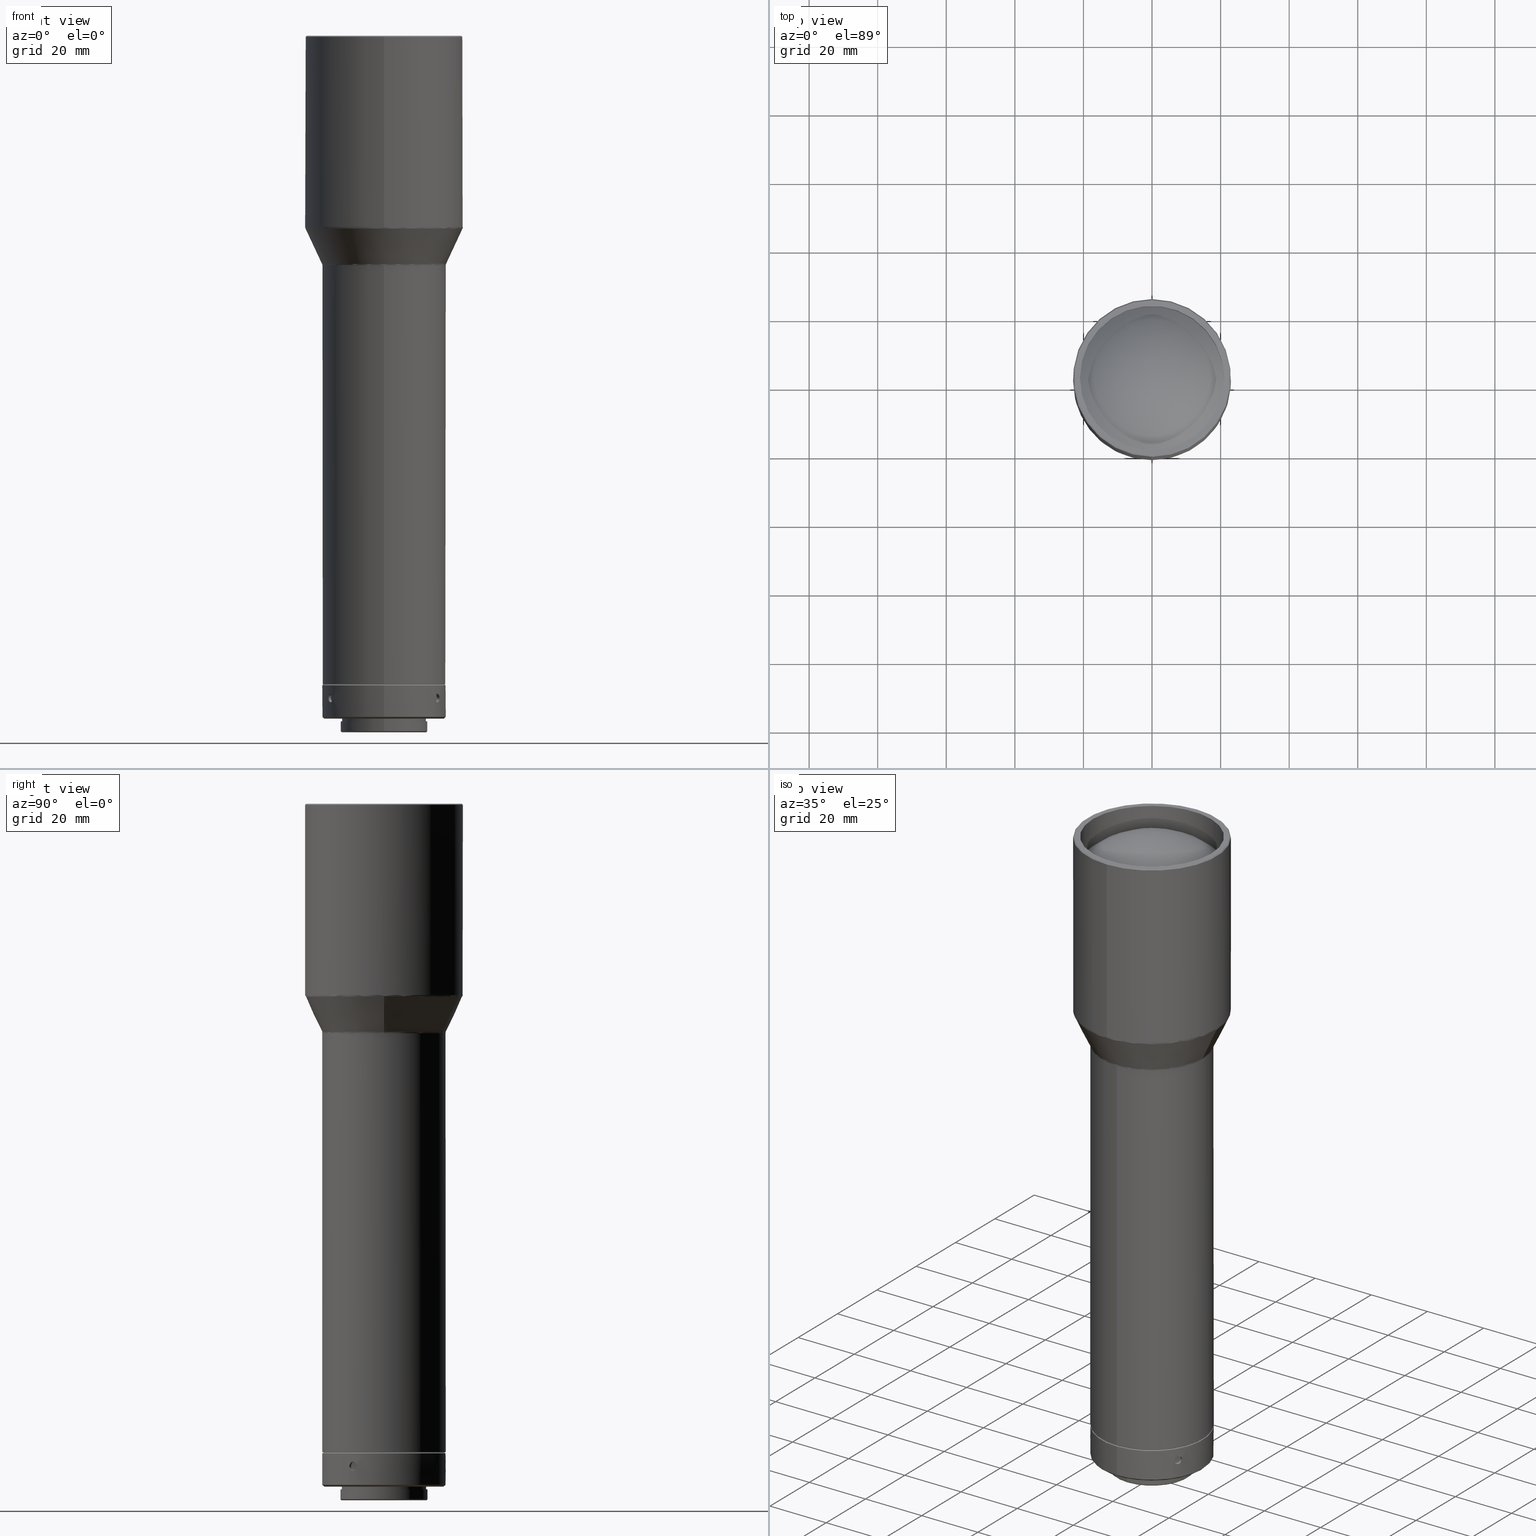
[diagram: canonical four-view strip — front | top / right | iso, engineering-drawing reading convention]
A machine part, canonical four-view strip (front | top / right | iso — engineering-drawing reading convention). The complete STEP part file that produces these views, byte-faithful:
ISO-10303-21;
HEADER;
FILE_DESCRIPTION (( 'STEP AP203' ),
    '1' );
FILE_NAME ('600081.STEP',
    '2024-08-14T02:13:35',
    ( 'Windows User' ),
    ( 'P R C' ),
    'SwSTEP 2.0',
    'SolidWorks 2020',
    '' );
FILE_SCHEMA (( 'CONFIG_CONTROL_DESIGN' ));
ENDSEC;

DATA;
#1 = ORIENTED_EDGE ( 'NONE', *, *, #345, .F. ) ;
#2 = CARTESIAN_POINT ( 'NONE',  ( -18.09369221296335084, -1.718642054122677891E-15, -633.5216110034501753 ) ) ;
#3 = CARTESIAN_POINT ( 'NONE',  ( 15.20640353588812310, -7.891921496871956876, -759.1526807331787268 ) ) ;
#4 = CARTESIAN_POINT ( 'NONE',  ( 15.95885680708785515, -8.326356316898451126, -761.1510160424840024 ) ) ;
#5 = ORIENTED_EDGE ( 'NONE', *, *, #456, .F. ) ;
#6 = CARTESIAN_POINT ( 'NONE',  ( -18.03173219073664413, -1.721803975109704093E-15, -633.6544846999101992 ) ) ;
#7 = CARTESIAN_POINT ( 'NONE',  ( 14.31222336367989634, -9.416867620840230657, -760.9204826943523585 ) ) ;
#8 = CARTESIAN_POINT ( 'NONE',  ( -14.17216132264869444, -9.625676827603932395, -759.9866413121567348 ) ) ;
#9 = PERSON_AND_ORGANIZATION ( #685, #57 ) ;
#10 = CARTESIAN_POINT ( 'NONE',  ( 14.94416663059029737, -10.03373538488436267, -760.4794710172558325 ) ) ;
#11 = AXIS2_PLACEMENT_3D ( 'NONE', #427, #691, #288 ) ;
#12 = FACE_OUTER_BOUND ( 'NONE', #283, .T. ) ;
#13 = CARTESIAN_POINT ( 'NONE',  ( -22.96826780926334521, -1.469884511325070676E-15, -623.0680499026378811 ) ) ;
#14 = CARTESIAN_POINT ( 'NONE',  ( 1.249999999999991340, 17.95654476785551523, -759.9866467607349705 ) ) ;
#15 = DIRECTION ( 'NONE',  ( -3.247486840701663975E-33, 1.417682489495849745E-17, 1.000000000000000000 ) ) ;
#16 = DIRECTION ( 'NONE',  ( 1.000000000000000000, 0.000000000000000000, 0.000000000000000000 ) ) ;
#17 = FACE_BOUND ( 'NONE', #709, .T. ) ;
#18 = ORIENTED_EDGE ( 'NONE', *, *, #136, .T. ) ;
#19 = CARTESIAN_POINT ( 'NONE',  ( 22.90630778703664561, -45.81261557407328411, -623.2009235990976777 ) ) ;
#20 = DIRECTION ( 'NONE',  ( 0.000000000000000000, -1.000000000000000000, -8.741913579725642299E-15 ) ) ;
#21 = ADVANCED_BREP_SHAPE_REPRESENTATION ( '600081', ( #109, #392, #94 ), #553 ) ;
#22 = CARTESIAN_POINT ( 'NONE',  ( -15.31176289856406747, -7.685531589343489678, -759.3839311703538897 ) ) ;
#23 = FACE_OUTER_BOUND ( 'NONE', #818, .T. ) ;
#24 = CARTESIAN_POINT ( 'NONE',  ( 0.000000000000000000, -7.282861387076647465E-16, -756.1518459999999777 ) ) ;
#25 = CARTESIAN_POINT ( 'NONE',  ( -1.217381786328831206, 17.08876110696514772, -760.4794854964634396 ) ) ;
#26 = EDGE_CURVE ( 'NONE', #286, #286, #587, .T. ) ;
#27 = DIRECTION ( 'NONE',  ( 0.000000000000000000, -0.000000000000000000, 1.000000000000000000 ) ) ;
#28 = LOCAL_TIME ( 10, 13, 35.00000000000000000, #337 ) ;
#29 = EDGE_LOOP ( 'NONE', ( #779 ) ) ;
#30 = CARTESIAN_POINT ( 'NONE',  ( -22.99999999999999289, -1.462989622071248185E-15, -622.7783053373569828 ) ) ;
#31 = AXIS2_PLACEMENT_3D ( 'NONE', #282, #132, #390 ) ;
#32 = CONICAL_SURFACE ( 'NONE', #519, 18.00000000000000355, 0.7853981633974552734 ) ;
#33 = EDGE_CURVE ( 'NONE', #232, #232, #574, .T. ) ;
#34 = CARTESIAN_POINT ( 'NONE',  ( -1.249999999999991562, 17.08629014574695759, -760.3170506878436754 ) ) ;
#35 = FACE_BOUND ( 'NONE', #355, .T. ) ;
#36 = CARTESIAN_POINT ( 'NONE',  ( -15.66957007690076153, -8.859524101807469521, -761.4019583759026091 ) ) ;
#37 = CARTESIAN_POINT ( 'NONE',  ( 1.249999999999991340, 17.95654476785551523, -760.1518460000002051 ) ) ;
#38 = CARTESIAN_POINT ( 'NONE',  ( -14.92582376334304328, -10.06080439058551335, -759.9866492969530327 ) ) ;
#39 = AXIS2_PLACEMENT_3D ( 'NONE', #614, #376, #336 ) ;
#40 = CARTESIAN_POINT ( 'NONE',  ( -15.50648075862412156, -9.141971788833695101, -761.4017330273642301 ) ) ;
#41 = VERTEX_POINT ( 'NONE', #47 ) ;
#42 = CARTESIAN_POINT ( 'NONE',  ( -1.734723475976807094E-15, -2.101811763889761389E-14, -756.1518460000002051 ) ) ;
#43 = VERTEX_POINT ( 'NONE', #513 ) ;
#44 = APPROVAL ( #332, 'δָ��' ) ;
#45 = CARTESIAN_POINT ( 'NONE',  ( -15.74948706598771864, -8.716454752419810603, -761.3696309096973209 ) ) ;
#46 = ORIENTED_EDGE ( 'NONE', *, *, #727, .T. ) ;
#47 = CARTESIAN_POINT ( 'NONE',  ( -2.172256618429164292E-15, -12.70000000000001883, -769.8518460000002506 ) ) ;
#48 = ADVANCED_FACE ( 'NONE', ( #612, #751 ), #809, .F. ) ;
#49 = CARTESIAN_POINT ( 'NONE',  ( -15.42216118007734416, -7.460613612858288057, -760.3170528966917345 ) ) ;
#50 = ORIENTED_EDGE ( 'NONE', *, *, #296, .T. ) ;
#51 = CARTESIAN_POINT ( 'NONE',  ( 8.018944991708160738E-15, -1.356645083301169713E-16, -567.0000000000001137 ) ) ;
#52 = CARTESIAN_POINT ( 'NONE',  ( -15.31135826556272761, -7.686315207163839425, -760.9204826943524722 ) ) ;
#53 = ORIENTED_EDGE ( 'NONE', *, *, #26, .F. ) ;
#54 = CARTESIAN_POINT ( 'NONE',  ( -0.7685972669805472002, 17.11509251071257154, -759.1526807331786131 ) ) ;
#55 = CARTESIAN_POINT ( 'NONE',  ( 15.20544793702758035, -7.893784383633594359, -761.1529419583998788 ) ) ;
#56 = ADVANCED_FACE ( 'NONE', ( #153, #339 ), #472, .T. ) ;
#57 = ORGANIZATION ( 'δָ��', 'δָ��', '' ) ;
#58 = EDGE_LOOP ( 'NONE', ( #465 ) ) ;
#59 = FACE_BOUND ( 'NONE', #310, .T. ) ;
#60 = CARTESIAN_POINT ( 'NONE',  ( -0.6291987904827288647, 17.98962862930883944, -761.2441421720308199 ) ) ;
#61 = AXIS2_PLACEMENT_3D ( 'NONE', #149, #807, #538 ) ;
#62 = CARTESIAN_POINT ( 'NONE',  ( -2.172256618429164292E-15, -2.107057189100896729E-14, -760.1518460000002051 ) ) ;
#63 = CIRCLE ( 'NONE', #765, 18.09369221296335795 ) ;
#64 = EDGE_LOOP ( 'NONE', ( #270 ) ) ;
#65 = DIRECTION ( 'NONE',  ( 4.314083075427408311E-32, 2.379644031336606723E-17, 1.000000000000000000 ) ) ;
#66 = CARTESIAN_POINT ( 'NONE',  ( -2.775557561562891351E-14, 6.938893903907228378E-15, -576.0000000000001137 ) ) ;
#67 = FACE_OUTER_BOUND ( 'NONE', #293, .T. ) ;
#68 = ORIENTED_EDGE ( 'NONE', *, *, #136, .F. ) ;
#69 = CARTESIAN_POINT ( 'NONE',  ( -0.1639471684931879669, 17.13194466032301122, -758.9019592401662067 ) ) ;
#70 = CARTESIAN_POINT ( 'NONE',  ( -0.9991393837938823408, 17.97261919133770292, -760.9204781668031501 ) ) ;
#71 = ADVANCED_FACE ( 'NONE', ( #12 ), #227, .T. ) ;
#72 = FACE_OUTER_BOUND ( 'NONE', #588, .T. ) ;
#73 = DIRECTION ( 'NONE',  ( -0.000000000000000000, -0.000000000000000000, 1.000000000000000000 ) ) ;
#74 = ORIENTED_EDGE ( 'NONE', *, *, #787, .T. ) ;
#75 = CARTESIAN_POINT ( 'NONE',  ( 0.1639469652627799645, 17.13194466033326435, -761.4017327599747205 ) ) ;
#76 = CARTESIAN_POINT ( 'NONE',  ( 15.40799213099970011, -7.490097000417441642, -760.4794854964634396 ) ) ;
#77 = CARTESIAN_POINT ( 'NONE',  ( -14.17216132264869799, -9.625676827603932395, -760.1518460000003188 ) ) ;
#78 = CALENDAR_DATE ( 2024, 14, 8 ) ;
#79 = CARTESIAN_POINT ( 'NONE',  ( 16.17582379988434127, -7.895740902226717317, -760.3170472896943011 ) ) ;
#80 = EDGE_LOOP ( 'NONE', ( #352 ) ) ;
#81 = CARTESIAN_POINT ( 'NONE',  ( -22.99999999999999289, 46.00000000000000000, -622.7783053373570965 ) ) ;
#82 = CARTESIAN_POINT ( 'NONE',  ( -2.602085213965210642E-15, -2.120808709249005599E-14, -769.8518460000002506 ) ) ;
#83 = CARTESIAN_POINT ( 'NONE',  ( -14.67032367375936097, -8.849183289301841171, -758.9348338120638573 ) ) ;
#84 = APPROVAL_ROLE ( '' ) ;
#85 = CARTESIAN_POINT ( 'NONE',  ( 15.01397497146081683, -9.928973643487909229, -760.7822719346070244 ) ) ;
#86 = CC_DESIGN_PERSON_AND_ORGANIZATION_ASSIGNMENT ( #725, #539, ( #269 ) ) ;
#87 = EDGE_LOOP ( 'NONE', ( #68 ) ) ;
#88 = CARTESIAN_POINT ( 'NONE',  ( -0.3260777996356181152, 17.12951876518236816, -761.3696299543972827 ) ) ;
#89 = FACE_BOUND ( 'NONE', #707, .T. ) ;
#90 = ORIENTED_EDGE ( 'NONE', *, *, #296, .F. ) ;
#91 = CARTESIAN_POINT ( 'NONE',  ( -22.99999999999999289, -46.00000000000000000, -622.9249152400420826 ) ) ;
#92 = EDGE_CURVE ( 'NONE', #219, #219, #657, .T. ) ;
#93 = FACE_OUTER_BOUND ( 'NONE', #377, .T. ) ;
#94 = AXIS2_PLACEMENT_3D ( 'NONE', #720, #483, #16 ) ;
#95 = CARTESIAN_POINT ( 'NONE',  ( 22.96826780926336298, -1.469884511325073240E-15, -623.0680499026378811 ) ) ;
#96 = DIRECTION ( 'NONE',  ( 3.670542878311740413E-31, -2.423400215667809268E-15, 1.000000000000000000 ) ) ;
#97 = DIRECTION ( 'NONE',  ( -3.247486840701663975E-33, 1.417682489495849745E-17, 1.000000000000000000 ) ) ;
#98 = FACE_OUTER_BOUND ( 'NONE', #58, .T. ) ;
#99 = ADVANCED_FACE ( 'NONE', ( #17, #721 ), #405, .F. ) ;
#100 = CARTESIAN_POINT ( 'NONE',  ( -16.10583412538210268, -8.037789467238122043, -759.5218396262730494 ) ) ;
#101 = CARTESIAN_POINT ( 'NONE',  ( 18.09369221296336505, -1.718642054122675722E-15, -633.5216110034501753 ) ) ;
#102 = CONICAL_SURFACE ( 'NONE', #218, 12.69999999999999929, 0.7853981633974482790 ) ;
#103 = CARTESIAN_POINT ( 'NONE',  ( -15.06517510034528762, -9.851589683955863208, -760.9204781668029227 ) ) ;
#104 = CARTESIAN_POINT ( 'NONE',  ( -2.172256618429164292E-15, -12.30000000000001847, -766.1518460000002051 ) ) ;
#105 = AXIS2_PLACEMENT_3D ( 'NONE', #481, #817, #753 ) ;
#106 = CARTESIAN_POINT ( 'NONE',  ( -16.17582393315551670, -7.895740629197095295, -759.9866467607351979 ) ) ;
#107 = ADVANCED_FACE ( 'NONE', ( #209 ), #656, .T. ) ;
#108 = CARTESIAN_POINT ( 'NONE',  ( 8.018944991708160738E-15, -23.00000000000000000, -567.2999999999999545 ) ) ;
#109 = MANIFOLD_SOLID_BREP ( '��ת1', #702 ) ;
#110 = CARTESIAN_POINT ( 'NONE',  ( -15.67042028344142679, -8.858020202463340098, -758.9019589727666926 ) ) ;
#111 = ORIENTED_EDGE ( 'NONE', *, *, #698, .T. ) ;
#112 = ADVANCED_FACE ( 'NONE', ( #738, #261 ), #127, .F. ) ;
#113 = VERTEX_POINT ( 'NONE', #108 ) ;
#114 = CARTESIAN_POINT ( 'NONE',  ( -14.26064585245222105, -9.494300659276662557, -759.5218319849831232 ) ) ;
#115 = ORIENTED_EDGE ( 'NONE', *, *, #33, .T. ) ;
#116 = VERTEX_POINT ( 'NONE', #443 ) ;
#117 = CARTESIAN_POINT ( 'NONE',  ( -14.31174755496423323, -9.417609080012235623, -760.9197619810976221 ) ) ;
#118 = CARTESIAN_POINT ( 'NONE',  ( 0.3260781995113445908, 17.12951875903969068, -758.9340621240561404 ) ) ;
#119 = CARTESIAN_POINT ( 'NONE',  ( 15.42216132264856299, -7.460613318143057171, -760.1518460000000914 ) ) ;
#120 = ADVANCED_FACE ( 'NONE', ( #802, #139 ), #546, .F. ) ;
#121 = ORIENTED_EDGE ( 'NONE', *, *, #429, .F. ) ;
#122 = CARTESIAN_POINT ( 'NONE',  ( -17.99999999999998579, 35.99999999999999289, -633.7976193625058841 ) ) ;
#123 = CARTESIAN_POINT ( 'NONE',  ( 0.7685930773333918831, 17.98395353626938231, -759.1526765139835788 ) ) ;
#124 = UNCERTAINTY_MEASURE_WITH_UNIT (LENGTH_MEASURE( 1.000000000000000082E-05 ), #365, 'distance_accuracy_value', 'NONE');
#125 = B_SPLINE_CURVE_WITH_KNOTS ( 'NONE', 3,
 ( #719, #14, #475, #776, #186, #123, #331, #452, #792, #594, #845, #731, #194, #521, #200, #325, #402, #724, #258, #387, #70, #335, #60, #590, #461, #131, #395, #563, #686, #148, #291, #806, #759, #487 ),
 .UNSPECIFIED., .T., .F.,
 ( 4, 2, 2, 2, 2, 2, 2, 2, 2, 2, 2, 2, 2, 2, 2, 2, 4 ),
 ( 0.000000000000000000, 0.0004885519476059284501, 0.0009771038952118569001, 0.001465655842817785567, 0.001954207790423713800, 0.002442759738029642250, 0.002931311685635571134, 0.003419863633241498717, 0.003908415580847426733, 0.004396967528453354750, 0.004885519476059283633, 0.005374071423665211650, 0.005862623371271139666, 0.006351175318877068550, 0.006839727266482996566, 0.007328279214088925450, 0.007816831161694853466 ),
 .UNSPECIFIED. ) ;
#126 = DATE_AND_TIME ( #477, #653 ) ;
#127 = CYLINDRICAL_SURFACE ( 'NONE', #415, 1.249999999999993783 ) ;
#128 = CIRCLE ( 'NONE', #831, 22.90630778703664205 ) ;
#129 = ORIENTED_EDGE ( 'NONE', *, *, #595, .F. ) ;
#130 = DIRECTION ( 'NONE',  ( 0.000000000000000000, 0.000000000000000000, -1.000000000000000000 ) ) ;
#131 = CARTESIAN_POINT ( 'NONE',  ( 0.1622121008445755463, 18.00000780388024424, -761.4019583759028365 ) ) ;
#132 = DIRECTION ( 'NONE',  ( -4.314083075427408311E-32, -2.379644031336606723E-17, -1.000000000000000000 ) ) ;
#133 = AXIS2_PLACEMENT_3D ( 'NONE', #678, #433, #749 ) ;
#134 = ORIENTED_EDGE ( 'NONE', *, *, #682, .F. ) ;
#135 = CARTESIAN_POINT ( 'NONE',  ( 1.250000326511838011, 17.08629012185999585, -759.9866440443729516 ) ) ;
#136 = EDGE_CURVE ( 'NONE', #638, #638, #303, .T. ) ;
#137 = CARTESIAN_POINT ( 'NONE',  ( 14.91867287631544947, -8.423989917367986635, -758.9019592401662067 ) ) ;
#138 = CARTESIAN_POINT ( 'NONE',  ( -4.097775668367271993E-16, 12.70000000000000817, -766.9518460000001596 ) ) ;
#139 = FACE_OUTER_BOUND ( 'NONE', #445, .T. ) ;
#140 = DIRECTION ( 'NONE',  ( -3.247486840701663975E-33, 1.417682489495849745E-17, 1.000000000000000000 ) ) ;
#141 = CARTESIAN_POINT ( 'NONE',  ( -18.09369221296335084, 36.18738442592671589, -633.5216110034500616 ) ) ;
#142 = CARTESIAN_POINT ( 'NONE',  ( 14.51288583182154390, -9.105102126884879965, -759.0591765480514823 ) ) ;
#143 = CARTESIAN_POINT ( 'NONE',  ( -14.26077352191246739, -9.494109391687631572, -760.7822752935102244 ) ) ;
#144 = DATE_AND_TIME ( #190, #170 ) ;
#145 = CARTESIAN_POINT ( 'NONE',  ( 14.94412286735163775, -10.03380008369036958, -759.8245469706282620 ) ) ;
#146 = EDGE_LOOP ( 'NONE', ( #459 ) ) ;
#147 = DIRECTION ( 'NONE',  ( 0.000000000000000000, -1.000000000000000000, 0.000000000000000000 ) ) ;
#148 = CARTESIAN_POINT ( 'NONE',  ( 1.000011374074571524, 17.97258026762708383, -760.9197661707627276 ) ) ;
#149 = CARTESIAN_POINT ( 'NONE',  ( -2.172256618429164292E-15, -2.116697430029468224E-14, -766.9518460000001596 ) ) ;
#150 = APPLICATION_PROTOCOL_DEFINITION ( 'international standard', 'config_control_design', 1994, #833 ) ;
#151 = CARTESIAN_POINT ( 'NONE',  ( 16.06471715756163832, -8.120254114432402304, -759.3839268980901807 ) ) ;
#152 = CIRCLE ( 'NONE', #558, 21.45211006975307555 ) ;
#153 = FACE_OUTER_BOUND ( 'NONE', #605, .T. ) ;
#154 = CARTESIAN_POINT ( 'NONE',  ( -22.99999999999999289, -1.466478415869840837E-15, -622.9249152400423100 ) ) ;
#155 = DIRECTION ( 'NONE',  ( -4.314083075427408311E-32, -2.379644031336606723E-17, -1.000000000000000000 ) ) ;
#156 = CARTESIAN_POINT ( 'NONE',  ( -2.172256618429164292E-15, -2.101386459142912902E-14, -756.1518460000002051 ) ) ;
#157 = EDGE_LOOP ( 'NONE', ( #115 ) ) ;
#158 = CARTESIAN_POINT ( 'NONE',  ( -1.091753158553806058, 17.09724684343644796, -760.7822752935103381 ) ) ;
#159 = DIRECTION ( 'NONE',  ( -4.314083075427408311E-32, -2.379644031336606723E-17, -1.000000000000000000 ) ) ;
#160 =( BOUNDED_SURFACE ( )  B_SPLINE_SURFACE ( 3, 3, ( 
 ( #542, #814, #606, #297, #19, #225, #677 ),
 ( #13, #428, #804, #95, #294, #746, #211 ),
 ( #413, #562, #359, #822, #493, #91, #154 ),
 ( #30, #81, #284, #548, #810, #356, #622 ) ),
 .UNSPECIFIED., .F., .T., .F. ) 
 B_SPLINE_SURFACE_WITH_KNOTS ( ( 4, 4 ),
 ( 4, 3, 4 ),
 ( 0.000000000000000000, 1.000000000000000000 ),
 ( 0.000000000000000000, 0.5000000000000000000, 1.000000000000000000 ),
 .UNSPECIFIED. ) 
 GEOMETRIC_REPRESENTATION_ITEM ( )  RATIONAL_B_SPLINE_SURFACE ( (
 ( 1.000000000000000000, 0.3333333333333333148, 0.3333333333333333148, 1.000000000000000000, 0.3333333333333333148, 0.3333333333333333148, 1.000000000000000000),
 ( 0.9841973380799534654, 0.3280657793599844885, 0.3280657793599844885, 0.9841973380799534654, 0.3280657793599844885, 0.3280657793599844885, 0.9841973380799534654),
 ( 0.9841973380799534654, 0.3280657793599844885, 0.3280657793599844885, 0.9841973380799534654, 0.3280657793599844885, 0.3280657793599844885, 0.9841973380799534654),
 ( 1.000000000000000000, 0.3333333333333333148, 0.3333333333333333148, 1.000000000000000000, 0.3333333333333333148, 0.3333333333333333148, 1.000000000000000000) ) ) 
 REPRESENTATION_ITEM ( '' )  SURFACE ( )  );
#161 = CARTESIAN_POINT ( 'NONE',  ( 0.000000000000000000, 0.000000000000000000, -567.0000000000001137 ) ) ;
#162 = CARTESIAN_POINT ( 'NONE',  ( 1.249999673483265017, 17.08629016963429592, -760.3170528966918482 ) ) ;
#163 = DIRECTION ( 'NONE',  ( 4.314083075427408311E-32, 2.379644031336606723E-17, 1.000000000000000000 ) ) ;
#164 = CARTESIAN_POINT ( 'NONE',  ( -6.758413082658511286E-16, 14.99999999999999645, -756.1518459999999777 ) ) ;
#165 = DIRECTION ( 'NONE',  ( 0.000000000000000000, -1.000000000000000000, -4.846800431335618536E-15 ) ) ;
#166 = DIRECTION ( 'NONE',  ( 0.000000000000000000, -1.000000000000000000, 0.000000000000000000 ) ) ;
#167 = VERTEX_POINT ( 'NONE', #435 ) ;
#168 = FACE_BOUND ( 'NONE', #420, .T. ) ;
#169 = CARTESIAN_POINT ( 'NONE',  ( -16.17582393315550959, -7.895740629197107729, -760.1518460000003188 ) ) ;
#170 = LOCAL_TIME ( 10, 13, 35.00000000000000000, #404 ) ;
#171 = ADVANCED_FACE ( 'NONE', ( #23, #67 ), #509, .F. ) ;
#172 = DIRECTION ( 'NONE',  ( -6.826679881473198578E-17, -1.036681423325748909E-16, 1.000000000000000000 ) ) ;
#173 = VERTEX_POINT ( 'NONE', #577 ) ;
#174 = AXIS2_PLACEMENT_3D ( 'NONE', #346, #289, #224 ) ;
#175 = AXIS2_PLACEMENT_3D ( 'NONE', #713, #15, #280 ) ;
#176 = EDGE_CURVE ( 'NONE', #767, #767, #536, .T. ) ;
#177 = DIRECTION ( 'NONE',  ( -4.314083075427408311E-32, -2.379644031336606723E-17, -1.000000000000000000 ) ) ;
#178 = CARTESIAN_POINT ( 'NONE',  ( -17.70000000000001350, -2.101811763889761389E-14, -756.1518460000002051 ) ) ;
#179 = CARTESIAN_POINT ( 'NONE',  ( -14.75560575677654640, -8.706463415344021683, -761.4019586405119071 ) ) ;
#180 = EDGE_LOOP ( 'NONE', ( #648 ) ) ;
#181 = CARTESIAN_POINT ( 'NONE',  ( -2.602085213965210247E-15, -12.40000000000003055, -770.1518460000002051 ) ) ;
#182 = FACE_BOUND ( 'NONE', #381, .T. ) ;
#183 = EDGE_LOOP ( 'NONE', ( #187 ) ) ;
#184 = CARTESIAN_POINT ( 'NONE',  ( 0.000000000000000000, 0.000000000000000000, -567.0000000000001137 ) ) ;
#185 = ADVANCED_FACE ( 'NONE', ( #263, #730 ), #271, .T. ) ;
#186 = CARTESIAN_POINT ( 'NONE',  ( 0.9991402188564658671, 17.97261914514088588, -759.3832148769149626 ) ) ;
#187 = ORIENTED_EDGE ( 'NONE', *, *, #727, .F. ) ;
#188 = CARTESIAN_POINT ( 'NONE',  ( -2.172256618429164292E-15, -2.116697430029468224E-14, -766.9518460000001596 ) ) ;
#189 = CARTESIAN_POINT ( 'NONE',  ( 14.19061003557546208, -9.598664562494295893, -759.8242084567494885 ) ) ;
#190 = CALENDAR_DATE ( 2024, 14, 8 ) ;
#191 = DIRECTION ( 'NONE',  ( 1.000000000000000000, 0.000000000000000000, -0.000000000000000000 ) ) ;
#192 = ORIENTED_EDGE ( 'NONE', *, *, #698, .F. ) ;
#193 = CARTESIAN_POINT ( 'NONE',  ( 18.03173219073666189, -1.721803975109704487E-15, -633.6544846999101992 ) ) ;
#194 = CARTESIAN_POINT ( 'NONE',  ( -0.7665056236648897237, 17.98405219532852684, -759.1507499321256773 ) ) ;
#195 = DATE_AND_TIME ( #78, #690 ) ;
#196 = CARTESIAN_POINT ( 'NONE',  ( 16.10573125108190951, -8.037996199706904932, -759.5214214048878603 ) ) ;
#197 = APPROVAL_PERSON_ORGANIZATION ( #9, #44, #84 ) ;
#198 = ORIENTED_EDGE ( 'NONE', *, *, #711, .T. ) ;
#199 = CARTESIAN_POINT ( 'NONE',  ( 0.7665069836806490677, 17.11519634467007123, -759.1507506336859024 ) ) ;
#200 = CARTESIAN_POINT ( 'NONE',  ( -1.091756721072176584, 17.96697050981527966, -759.5214214048879739 ) ) ;
#201 = CARTESIAN_POINT ( 'NONE',  ( 8.673617379884035472E-15, -1.428034404241264756E-16, -567.3000000000000682 ) ) ;
#202 = APPROVAL_STATUS ( 'not_yet_approved' ) ;
#203 = CARTESIAN_POINT ( 'NONE',  ( 16.10583377797237148, -8.037790164337506482, -760.7818536652779358 ) ) ;
#204 = CARTESIAN_POINT ( 'NONE',  ( -4.652887180679852235E-16, 12.30000000000001137, -766.1518460000002051 ) ) ;
#205 = FACE_OUTER_BOUND ( 'NONE', #385, .T. ) ;
#206 = CARTESIAN_POINT ( 'NONE',  ( 15.14169231789742831, -8.015977395693987262, -761.2445158412486990 ) ) ;
#207 = CARTESIAN_POINT ( 'NONE',  ( -14.17216132264869799, -9.625676827603932395, -760.1518460000003188 ) ) ;
#208 = SECURITY_CLASSIFICATION_LEVEL ( 'unclassified' ) ;
#209 = FACE_OUTER_BOUND ( 'NONE', #670, .T. ) ;
#210 = EDGE_LOOP ( 'NONE', ( #592 ) ) ;
#211 = CARTESIAN_POINT ( 'NONE',  ( -22.96826780926334521, -1.469884511325070676E-15, -623.0680499026378811 ) ) ;
#212 = CARTESIAN_POINT ( 'NONE',  ( 8.018944991708160738E-15, -1.428034404241233695E-16, -567.2999999999999545 ) ) ;
#213 = CARTESIAN_POINT ( 'NONE',  ( -1.734723475976807094E-15, -2.114854442793124254E-14, -765.6518460000000914 ) ) ;
#214 = APPROVAL_DATE_TIME ( #655, #491 ) ;
#215 = CARTESIAN_POINT ( 'NONE',  ( 16.06431448413912833, -8.121029507381859247, -760.9204781668029227 ) ) ;
#216 = DIRECTION ( 'NONE',  ( 4.059358550877070560E-33, 1.417682489495849437E-17, 1.000000000000000000 ) ) ;
#217 = CARTESIAN_POINT ( 'NONE',  ( -2.172256618429164292E-15, -2.107057189100896729E-14, -760.1518460000002051 ) ) ;
#218 = AXIS2_PLACEMENT_3D ( 'NONE', #82, #823, #20 ) ;
#219 = VERTEX_POINT ( 'NONE', #422 ) ;
#220 = ADVANCED_FACE ( 'NONE', ( #205, #645 ), #848, .T. ) ;
#221 = DIRECTION ( 'NONE',  ( -3.247486840701663975E-33, 1.417682489495849745E-17, 1.000000000000000000 ) ) ;
#222 = CIRCLE ( 'NONE', #61, 12.69999999999999751 ) ;
#223 = B_SPLINE_CURVE_WITH_KNOTS ( 'NONE', 3,
 ( #504, #106, #697, #100, #309, #371, #636, #832, #110, #235, #241, #436, #700, #769, #507, #826, #38, #362, #441, #372, #103, #368, #639, #633, #40, #36, #45, #432, #575, #364, #837, #244, #568, #511 ),
 .UNSPECIFIED., .T., .F.,
 ( 4, 2, 2, 2, 2, 2, 2, 2, 2, 2, 2, 2, 2, 2, 2, 2, 4 ),
 ( 0.000000000000000000, 0.0004885519476059302932, 0.0009771038952118605864, 0.001465655842817790988, 0.001954207790423721173, 0.002442759738029651358, 0.002931311685635581976, 0.003419863633241512161, 0.003908415580847442346, 0.004396967528453372964, 0.004885519476059302715, 0.005374071423665233334, 0.005862623371271163952, 0.006351175318877093703, 0.006839727266483024322, 0.007328279214088954073, 0.007816831161694884691 ),
 .UNSPECIFIED. ) ;
#224 = DIRECTION ( 'NONE',  ( 0.000000000000000000, -1.000000000000000000, 0.000000000000000000 ) ) ;
#225 = CARTESIAN_POINT ( 'NONE',  ( -22.90630778703663140, -45.81261557407327700, -623.2009235990976777 ) ) ;
#226 = FACE_BOUND ( 'NONE', #256, .T. ) ;
#227 = CYLINDRICAL_SURFACE ( 'NONE', #312, 17.13195292267202419 ) ;
#228 = CARTESIAN_POINT ( 'NONE',  ( 0.3284552892831237858, 17.12946463425359411, -761.3688582701289533 ) ) ;
#229 = CARTESIAN_POINT ( 'NONE',  ( -7.311375404722653570, -63.84507486142585009, -576.0000000000001137 ) ) ;
#230 = ADVANCED_FACE ( 'NONE', ( #59, #780 ), #506, .T. ) ;
#231 = CARTESIAN_POINT ( 'NONE',  ( 0.7685964427163276547, 17.11509254747214470, -761.1510118662647528 ) ) ;
#232 = VERTEX_POINT ( 'NONE', #499 ) ;
#233 = SPHERICAL_SURFACE ( 'NONE', #624, 31.20951493132240273 ) ;
#234 = CARTESIAN_POINT ( 'NONE',  ( 8.673617379884035472E-15, 22.70000000000000639, -567.0000000000001137 ) ) ;
#235 = CARTESIAN_POINT ( 'NONE',  ( -15.50735788173640906, -9.140483865457488477, -758.9017336239675160 ) ) ;
#236 = EDGE_CURVE ( 'NONE', #43, #43, #567, .T. ) ;
#237 = DIRECTION ( 'NONE',  ( 0.000000000000000000, -1.000000000000000000, -1.036681423325748909E-16 ) ) ;
#238 = VERTEX_POINT ( 'NONE', #635 ) ;
#239 = EDGE_CURVE ( 'NONE', #569, #569, #763, .T. ) ;
#240 = LOCAL_TIME ( 10, 13, 35.00000000000000000, #668 ) ;
#241 = CARTESIAN_POINT ( 'NONE',  ( -15.42341458922621023, -9.281228838265972669, -758.9340611631306501 ) ) ;
#242 = AXIS2_PLACEMENT_3D ( 'NONE', #42, #572, #829 ) ;
#243 = CIRCLE ( 'NONE', #396, 22.70000000000000639 ) ;
#244 = CARTESIAN_POINT ( 'NONE',  ( -16.16155305345585447, -7.925160248036703159, -760.4794710172558325 ) ) ;
#245 = EDGE_LOOP ( 'NONE', ( #424 ) ) ;
#246 = VERTEX_POINT ( 'NONE', #437 ) ;
#247 = FACE_OUTER_BOUND ( 'NONE', #64, .T. ) ;
#248 = ADVANCED_FACE ( 'NONE', ( #347, #425 ), #407, .F. ) ;
#249 = ORIENTED_EDGE ( 'NONE', *, *, #754, .T. ) ;
#250 = CARTESIAN_POINT ( 'NONE',  ( -17.99999999999998579, -1.725210070564941032E-15, -633.7976193625058841 ) ) ;
#251 = ORIENTED_EDGE ( 'NONE', *, *, #423, .T. ) ;
#252 = CARTESIAN_POINT ( 'NONE',  ( 18.03173219073665479, -36.06346438147329536, -633.6544846999103129 ) ) ;
#253 = AXIS2_PLACEMENT_3D ( 'NONE', #340, #278, #147 ) ;
#254 = CARTESIAN_POINT ( 'NONE',  ( 14.26064631792722359, -9.494299961010000288, -760.7818614062966844 ) ) ;
#255 = CIRCLE ( 'NONE', #105, 12.40000000000001101 ) ;
#256 = EDGE_LOOP ( 'NONE', ( #18 ) ) ;
#257 = CARTESIAN_POINT ( 'NONE',  ( 18.00000000000000711, -35.99999999999999289, -633.7976193625058841 ) ) ;
#258 = CARTESIAN_POINT ( 'NONE',  ( -1.217463806281648075, 17.95889011854546524, -760.4791468894959507 ) ) ;
#259 = PRODUCT_DEFINITION ( 'δ֪', '', #269, #782 ) ;
#260 = PERSON_AND_ORGANIZATION ( #685, #57 ) ;
#261 = FACE_OUTER_BOUND ( 'NONE', #87, .T. ) ;
#262 = EDGE_LOOP ( 'NONE', ( #134 ) ) ;
#263 = FACE_OUTER_BOUND ( 'NONE', #80, .T. ) ;
#264 = CARTESIAN_POINT ( 'NONE',  ( 15.42216132264856299, -7.460613318143057171, -760.1518460000000914 ) ) ;
#265 = ADVANCED_FACE ( 'NONE', ( #618 ), #671, .T. ) ;
#266 = DIRECTION ( 'NONE',  ( 0.000000000000000000, -0.000000000000000000, 1.000000000000000000 ) ) ;
#267 = DATE_TIME_ROLE ( 'creation_date' ) ;
#268 = CARTESIAN_POINT ( 'NONE',  ( 18.00000000000000711, 36.00000000000000000, -633.9442292651909838 ) ) ;
#269 = PRODUCT_DEFINITION_FORMATION_WITH_SPECIFIED_SOURCE ( '�κ�', '', #397, .NOT_KNOWN. ) ;
#270 = ORIENTED_EDGE ( 'NONE', *, *, #33, .F. ) ;
#271 = CYLINDRICAL_SURFACE ( 'NONE', #747, 18.00000000000000355 ) ;
#272 = CARTESIAN_POINT ( 'NONE',  ( 15.40802678138708615, -7.490025089534919189, -759.8245365065901069 ) ) ;
#273 = DIRECTION ( 'NONE',  ( -3.640699327764161545E-31, 2.413528314402517442E-15, -1.000000000000000000 ) ) ;
#274 = AXIS2_PLACEMENT_3D ( 'NONE', #501, #434, #166 ) ;
#275 = PERSON_AND_ORGANIZATION_ROLE ( 'creator' ) ;
#276 = CARTESIAN_POINT ( 'NONE',  ( 15.26487564935877828, -9.539717018441033147, -759.0595501845232320 ) ) ;
#277 = ORIENTED_EDGE ( 'NONE', *, *, #849, .T. ) ;
#278 = DIRECTION ( 'NONE',  ( 0.000000000000000000, 1.024685825976774972E-16, 1.000000000000000000 ) ) ;
#279 = FACE_OUTER_BOUND ( 'NONE', #373, .T. ) ;
#280 = DIRECTION ( 'NONE',  ( 0.000000000000000000, -1.000000000000000000, 0.000000000000000000 ) ) ;
#281 = APPROVAL_DATE_TIME ( #144, #646 ) ;
#282 = CARTESIAN_POINT ( 'NONE',  ( 8.018944991708160738E-15, 21.75000000000000355, -567.0000000000001137 ) ) ;
#283 = EDGE_LOOP ( 'NONE', ( #722 ) ) ;
#284 = CARTESIAN_POINT ( 'NONE',  ( 23.00000000000001066, 46.00000000000000000, -622.7783053373570965 ) ) ;
#285 = ADVANCED_FACE ( 'NONE', ( #688, #290 ), #160, .T. ) ;
#286 = VERTEX_POINT ( 'NONE', #550 ) ;
#287 = CARTESIAN_POINT ( 'NONE',  ( -15.14187250618628511, -8.015618412799087267, -761.2441372580751704 ) ) ;
#288 = DIRECTION ( 'NONE',  ( 0.000000000000000000, -1.000000000000000000, 0.000000000000000000 ) ) ;
#289 = DIRECTION ( 'NONE',  ( -3.247486840701663975E-33, 1.417682489495849745E-17, 1.000000000000000000 ) ) ;
#290 = FACE_OUTER_BOUND ( 'NONE', #597, .T. ) ;
#291 = CARTESIAN_POINT ( 'NONE',  ( 1.091755923036134446, 17.96697055881274352, -760.7822719346069107 ) ) ;
#292 = AXIS2_PLACEMENT_3D ( 'NONE', #212, #159, #629 ) ;
#293 = EDGE_LOOP ( 'NONE', ( #784 ) ) ;
#294 = CARTESIAN_POINT ( 'NONE',  ( 22.96826780926336298, -45.93653561852671174, -623.0680499026376538 ) ) ;
#295 = DIRECTION ( 'NONE',  ( 0.000000000000000000, -3.083952846180990083E-15, 1.000000000000000000 ) ) ;
#296 = EDGE_CURVE ( 'NONE', #830, #830, #815, .T. ) ;
#297 = CARTESIAN_POINT ( 'NONE',  ( 22.90630778703664916, -1.473046432312105358E-15, -623.2009235990976777 ) ) ;
#298 = FACE_BOUND ( 'NONE', #512, .T. ) ;
#299 = DIRECTION ( 'NONE',  ( -1.000000000000000000, 1.387778780781446662E-16, 0.000000000000000000 ) ) ;
#300 = VERTEX_POINT ( 'NONE', #374 ) ;
#301 = FACE_OUTER_BOUND ( 'NONE', #527, .T. ) ;
#302 = AXIS2_PLACEMENT_3D ( 'NONE', #138, #342, #609 ) ;
#303 = B_SPLINE_CURVE_WITH_KNOTS ( 'NONE', 3,
 ( #419, #591, #145, #789, #808, #733, #276, #540, #478, #726, #399, #351, #411, #151, #196, #669, #675, #79, #471, #203, #215, #4, #464, #338, #611, #744, #851, #604, #552, #681, #85, #10, #663, #616 ),
 .UNSPECIFIED., .T., .F.,
 ( 4, 2, 2, 2, 2, 2, 2, 2, 2, 2, 2, 2, 2, 2, 2, 2, 4 ),
 ( 0.000000000000000000, 0.0004885519476059288838, 0.0009771038952118577675, 0.001465655842817786651, 0.001954207790423715535, 0.002442759738029644419, 0.002931311685635573303, 0.003419863633241502186, 0.003908415580847431070, 0.004396967528453359954, 0.004885519476059288838, 0.005374071423665217721, 0.005862623371271146605, 0.006351175318877075489, 0.006839727266483004373, 0.007328279214088933256, 0.007816831161694862140 ),
 .UNSPECIFIED. ) ;
#304 =( NAMED_UNIT ( * ) PLANE_ANGLE_UNIT ( ) SI_UNIT ( $, .RADIAN. ) );
#305 = CYLINDRICAL_SURFACE ( 'NONE', #438, 1.249999999999991118 ) ;
#306 = CARTESIAN_POINT ( 'NONE',  ( 8.018944991708157582E-15, -18.00000000000000355, -633.9442292651908701 ) ) ;
#307 = CARTESIAN_POINT ( 'NONE',  ( 8.018944991708151271E-15, -1.462989622071248185E-15, -622.7783053373569828 ) ) ;
#308 = VERTEX_POINT ( 'NONE', #772 ) ;
#309 = CARTESIAN_POINT ( 'NONE',  ( -16.06431486166293610, -8.121028761097802473, -759.3832148769151900 ) ) ;
#310 = EDGE_LOOP ( 'NONE', ( #790 ) ) ;
#311 = CARTESIAN_POINT ( 'NONE',  ( 21.00000000000000355, 0.000000000000000000, -567.0000000000001137 ) ) ;
#312 = AXIS2_PLACEMENT_3D ( 'NONE', #161, #495, #755 ) ;
#313 = ADVANCED_FACE ( 'NONE', ( #498 ), #233, .T. ) ;
#314 = CARTESIAN_POINT ( 'NONE',  ( -14.51288621978153870, -9.105101505739851220, -761.2445158412489263 ) ) ;
#315 = EDGE_LOOP ( 'NONE', ( #541 ) ) ;
#316 = CARTESIAN_POINT ( 'NONE',  ( -1.734723475976807094E-15, -2.101811763889761389E-14, -756.4518460000001596 ) ) ;
#317 = CARTESIAN_POINT ( 'NONE',  ( -14.99877917113238368, -8.280281692600144794, -761.3688582701289533 ) ) ;
#318 = CARTESIAN_POINT ( 'NONE',  ( 18.03173219073666189, -1.721803975109704487E-15, -633.6544846999101992 ) ) ;
#319 = CARTESIAN_POINT ( 'NONE',  ( 15.35252668046614843, -7.603137451748845699, -760.7822752935104518 ) ) ;
#320 = B_SPLINE_CURVE_WITH_KNOTS ( 'NONE', 3,
 ( #119, #736, #272, #799, #524, #3, #850, #666, #137, #781, #341, #142, #654, #786, #650, #189, #408, #517, #467, #254, #7, #600, #455, #716, #672, #529, #383, #206, #55, #661, #319, #76, #537, #264 ),
 .UNSPECIFIED., .T., .F.,
 ( 4, 2, 2, 2, 2, 2, 2, 2, 2, 2, 2, 2, 2, 2, 2, 2, 4 ),
 ( 0.000000000000000000, 0.0004885668602115774903, 0.0009771337204231549806, 0.001465700580634730736, 0.001954267440846306492, 0.002442834301057882247, 0.002931401161269458003, 0.003419968021481033758, 0.003908534881692609514, 0.004397101741904184402, 0.004885668602115761025, 0.005374235462327335913, 0.005862802322538912536, 0.006351369182750487424, 0.006839936042962064047, 0.007328502903173640670, 0.007817069763385219028 ),
 .UNSPECIFIED. ) ;
#321 = EDGE_LOOP ( 'NONE', ( #644 ) ) ;
#322 = CARTESIAN_POINT ( 'NONE',  ( -18.09369221296335084, -36.18738442592671589, -633.5216110034500616 ) ) ;
#323 = PRODUCT_RELATED_PRODUCT_CATEGORY ( 'detail', '', ( #397 ) ) ;
#324 = AXIS2_PLACEMENT_3D ( 'NONE', #204, #216, #745 ) ;
#325 = CARTESIAN_POINT ( 'NONE',  ( -1.217386932848438352, 17.95889559784531642, -759.8242227959093498 ) ) ;
#326 = AXIS2_PLACEMENT_3D ( 'NONE', #543, #360, #741 ) ;
#327 = SHAPE_DEFINITION_REPRESENTATION ( #660, #21 ) ;
#328 = DIRECTION ( 'NONE',  ( 1.000000000000000000, 0.000000000000000000, 0.000000000000000000 ) ) ;
#329 = EDGE_LOOP ( 'NONE', ( #121 ) ) ;
#330 = CARTESIAN_POINT ( 'NONE',  ( -0.9991358013979221298, 17.10318277571238355, -759.3832104299167440 ) ) ;
#331 = CARTESIAN_POINT ( 'NONE',  ( 0.6291994582050498552, 17.98962860717566770, -759.0595501845231183 ) ) ;
#332 = APPROVAL_STATUS ( 'not_yet_approved' ) ;
#333 = ORIENTED_EDGE ( 'NONE', *, *, #564, .F. ) ;
#334 = CARTESIAN_POINT ( 'NONE',  ( -18.03173219073663702, -36.06346438147328826, -633.6544846999103129 ) ) ;
#335 = CARTESIAN_POINT ( 'NONE',  ( -0.7685923121488426046, 17.98395356874549478, -761.1510160424842297 ) ) ;
#336 = DIRECTION ( 'NONE',  ( 0.000000000000000000, -1.000000000000000000, 1.417682489495849437E-17 ) ) ;
#337 = COORDINATED_UNIVERSAL_TIME_OFFSET ( 8, 0, .AHEAD. ) ;
#338 = CARTESIAN_POINT ( 'NONE',  ( 15.75062854503685550, -8.714374892937765793, -761.3688613772538929 ) ) ;
#339 = FACE_OUTER_BOUND ( 'NONE', #315, .T. ) ;
#340 = CARTESIAN_POINT ( 'NONE',  ( 0.000000000000000000, 0.000000000000000000, -567.0000000000001137 ) ) ;
#341 = CARTESIAN_POINT ( 'NONE',  ( 14.67155930017475995, -8.847151383917072565, -758.9340621240561404 ) ) ;
#342 = DIRECTION ( 'NONE',  ( -4.059358550877070560E-33, -1.417682489495849437E-17, -1.000000000000000000 ) ) ;
#343 = DATE_TIME_ROLE ( 'classification_date' ) ;
#344 = CARTESIAN_POINT ( 'NONE',  ( 0.000000000000000000, 0.000000000000000000, -576.0000000000001137 ) ) ;
#345 = EDGE_CURVE ( 'NONE', #370, #370, #367, .T. ) ;
#346 = CARTESIAN_POINT ( 'NONE',  ( -2.172256618429164292E-15, -2.114854442793123623E-14, -765.6518460000000914 ) ) ;
#347 = FACE_OUTER_BOUND ( 'NONE', #739, .T. ) ;
#348 = CARTESIAN_POINT ( 'NONE',  ( 8.018944991708157582E-15, -1.718642054122675525E-15, -633.5216110034501753 ) ) ;
#349 = CARTESIAN_POINT ( 'NONE',  ( -15.14169266184480378, -8.015976749138262747, -759.0591765480515960 ) ) ;
#350 = COORDINATED_UNIVERSAL_TIME_OFFSET ( 8, 0, .AHEAD. ) ;
#351 = CARTESIAN_POINT ( 'NONE',  ( 15.89389229175803742, -8.450273022654959831, -759.0591703457098447 ) ) ;
#352 = ORIENTED_EDGE ( 'NONE', *, *, #92, .T. ) ;
#353 = CARTESIAN_POINT ( 'NONE',  ( -0.7665061602903220361, 17.11519638120432063, -761.1529419584001062 ) ) ;
#354 = DIRECTION ( 'NONE',  ( 1.000000000000000000, 0.000000000000000000, 0.000000000000000000 ) ) ;
#355 = EDGE_LOOP ( 'NONE', ( #111 ) ) ;
#356 = CARTESIAN_POINT ( 'NONE',  ( -22.99999999999999289, -46.00000000000000000, -622.7783053373570965 ) ) ;
#357 = CARTESIAN_POINT ( 'NONE',  ( 0.000000000000000000, -1.036681423325729952E-15, -756.0518459999999550 ) ) ;
#358 = CIRCLE ( 'NONE', #175, 12.69999999999999751 ) ;
#359 = CARTESIAN_POINT ( 'NONE',  ( 23.00000000000001066, 46.00000000000000711, -622.9249152400420826 ) ) ;
#360 = DIRECTION ( 'NONE',  ( -3.247486840701663975E-33, 1.417682489495849745E-17, 1.000000000000000000 ) ) ;
#361 = EDGE_CURVE ( 'NONE', #710, #710, #846, .T. ) ;
#362 = CARTESIAN_POINT ( 'NONE',  ( -14.92582410297037931, -10.06080388672740256, -760.3170472896943011 ) ) ;
#363 = CARTESIAN_POINT ( 'NONE',  ( 8.018944991708157582E-15, -1.473046432312095103E-15, -623.2009235990976777 ) ) ;
#364 = CARTESIAN_POINT ( 'NONE',  ( -16.06471677035730750, -8.120254879791552582, -760.9197661707626139 ) ) ;
#365 =( LENGTH_UNIT ( ) NAMED_UNIT ( * ) SI_UNIT ( .MILLI., .METRE. ) );
#366 = ADVANCED_FACE ( 'NONE', ( #301, #705 ), #305, .F. ) ;
#367 = CIRCLE ( 'NONE', #431, 23.00000000000000000 ) ;
#368 = CARTESIAN_POINT ( 'NONE',  ( -15.19026449493903286, -9.657597251847063191, -761.1510160424840024 ) ) ;
#369 = AXIS2_PLACEMENT_3D ( 'NONE', #201, #544, #409 ) ;
#370 = VERTEX_POINT ( 'NONE', #641 ) ;
#371 = CARTESIAN_POINT ( 'NONE',  ( -15.95885716155510892, -8.326355637990912939, -759.1526765139832378 ) ) ;
#372 = CARTESIAN_POINT ( 'NONE',  ( -15.01384736159118383, -9.929166118684818798, -760.7818536652779358 ) ) ;
#373 = EDGE_LOOP ( 'NONE', ( #664 ) ) ;
#374 = CARTESIAN_POINT ( 'NONE',  ( 21.00000000000000355, 0.000000000000000000, -576.0000000000001137 ) ) ;
#375 = ADVANCED_FACE ( 'NONE', ( #168, #630 ), #570, .F. ) ;
#376 = DIRECTION ( 'NONE',  ( 4.059358550877070560E-33, 1.417682489495849437E-17, 1.000000000000000000 ) ) ;
#377 = EDGE_LOOP ( 'NONE', ( #277 ) ) ;
#378 = CARTESIAN_POINT ( 'NONE',  ( 14.92582393315538347, -10.06080413865841727, -760.1518460000003188 ) ) ;
#379 = AXIS2_PLACEMENT_3D ( 'NONE', #217, #480, #555 ) ;
#380 = CARTESIAN_POINT ( 'NONE',  ( -14.75472570782238613, -8.707954742955040572, -758.9019592401663203 ) ) ;
#381 = EDGE_LOOP ( 'NONE', ( #453 ) ) ;
#382 = CARTESIAN_POINT ( 'NONE',  ( 1.000015851322698435, 17.10314144155226046, -759.3839311703540034 ) ) ;
#383 = CARTESIAN_POINT ( 'NONE',  ( 14.99763730506796477, -8.282367724496722872, -761.3696299543975101 ) ) ;
#384 = CC_DESIGN_DATE_AND_TIME_ASSIGNMENT ( #126, #267, ( #259 ) ) ;
#385 = EDGE_LOOP ( 'NONE', ( #1 ) ) ;
#386 = CARTESIAN_POINT ( 'NONE',  ( -1.091982635874946039, 17.09723191223510952, -759.5218319849832369 ) ) ;
#387 = CARTESIAN_POINT ( 'NONE',  ( -1.091986416381327318, 17.96695628302229863, -760.7818536652781631 ) ) ;
#388 = SECURITY_CLASSIFICATION ( '', '', #208 ) ;
#389 = PERSON_AND_ORGANIZATION ( #685, #57 ) ;
#390 = DIRECTION ( 'NONE',  ( 0.000000000000000000, 1.000000000000000000, -2.379644031336606723E-17 ) ) ;
#391 = EDGE_LOOP ( 'NONE', ( #515 ) ) ;
#392 = MANIFOLD_SOLID_BREP ( '<��Ƭ>-<�ƶ���1>', #631 ) ;
#393 = CARTESIAN_POINT ( 'NONE',  ( -17.99999999999998934, -35.99999999999999289, -633.9442292651909838 ) ) ;
#394 = AXIS2_PLACEMENT_3D ( 'NONE', #188, #516, #652 ) ;
#395 = CARTESIAN_POINT ( 'NONE',  ( 0.3260722864606774296, 17.99768327192968798, -761.3696309096974346 ) ) ;
#396 = AXIS2_PLACEMENT_3D ( 'NONE', #793, #273, #530 ) ;
#397 = PRODUCT ( '600081', '600081', '', ( #743 ) ) ;
#398 = PERSON_AND_ORGANIZATION ( #685, #57 ) ;
#399 = CARTESIAN_POINT ( 'NONE',  ( 15.74948724688817236, -8.716454428236435348, -758.9340611631306501 ) ) ;
#400 = ORIENTED_EDGE ( 'NONE', *, *, #619, .T. ) ;
#401 = CARTESIAN_POINT ( 'NONE',  ( 18.00000000000000711, -1.728698864363527176E-15, -633.9442292651908701 ) ) ;
#402 = CARTESIAN_POINT ( 'NONE',  ( -1.250000303081699959, 17.95654474675724899, -759.9866492969530327 ) ) ;
#403 = CARTESIAN_POINT ( 'NONE',  ( -14.91782147482175525, -8.425497549923964158, -758.9017333593477588 ) ) ;
#404 = COORDINATED_UNIVERSAL_TIME_OFFSET ( 8, 0, .AHEAD. ) ;
#405 = PLANE ( 'NONE',  #31 ) ;
#406 = DIRECTION ( 'NONE',  ( 0.000000000000000000, -1.000000000000000000, 0.000000000000000000 ) ) ;
#407 = CYLINDRICAL_SURFACE ( 'NONE', #379, 1.249999999999993561 ) ;
#408 = CARTESIAN_POINT ( 'NONE',  ( 14.17216113870590632, -9.625677098428207401, -759.9866440443726106 ) ) ;
#409 = DIRECTION ( 'NONE',  ( 0.000000000000000000, 1.000000000000000000, 0.000000000000000000 ) ) ;
#410 = PERSON_AND_ORGANIZATION_ROLE ( 'creator' ) ;
#411 = CARTESIAN_POINT ( 'NONE',  ( 15.95789887597217493, -8.328212755427065517, -759.1507499321263595 ) ) ;
#412 = ORIENTED_EDGE ( 'NONE', *, *, #176, .F. ) ;
#413 = CARTESIAN_POINT ( 'NONE',  ( -22.99999999999999289, -1.466478415869840837E-15, -622.9249152400423100 ) ) ;
#414 = DIRECTION ( 'NONE',  ( 0.000000000000000000, -1.000000000000000000, 0.000000000000000000 ) ) ;
#415 = AXIS2_PLACEMENT_3D ( 'NONE', #62, #526, #484 ) ;
#416 = CARTESIAN_POINT ( 'NONE',  ( -14.67155950543247123, -8.847151040685670154, -761.3696299543975101 ) ) ;
#417 = CONICAL_SURFACE ( 'NONE', #369, 22.99999999999996447, 0.7853981633974367327 ) ;
#418 = APPLICATION_PROTOCOL_DEFINITION ( 'international standard', 'config_control_design', 1994, #599 ) ;
#419 = CARTESIAN_POINT ( 'NONE',  ( 14.92582393315538347, -10.06080413865841727, -760.1518460000003188 ) ) ;
#420 = EDGE_LOOP ( 'NONE', ( #583 ) ) ;
#421 = CARTESIAN_POINT ( 'NONE',  ( 1.091981798420536443, 17.09723196621496299, -760.7818614062967981 ) ) ;
#422 = CARTESIAN_POINT ( 'NONE',  ( 8.018944991708152849E-15, -18.00000000000000711, -756.0518459999999550 ) ) ;
#423 = EDGE_CURVE ( 'NONE', #839, #839, #223, .T. ) ;
#424 = ORIENTED_EDGE ( 'NONE', *, *, #429, .T. ) ;
#425 = FACE_OUTER_BOUND ( 'NONE', #522, .T. ) ;
#426 = FACE_BOUND ( 'NONE', #485, .T. ) ;
#427 = CARTESIAN_POINT ( 'NONE',  ( 8.018944991708152849E-15, -4.634425477800788993E-15, -756.0518459999999550 ) ) ;
#428 = CARTESIAN_POINT ( 'NONE',  ( -22.96826780926334521, 45.93653561852670464, -623.0680499026376538 ) ) ;
#429 = EDGE_CURVE ( 'NONE', #173, #173, #488, .T. ) ;
#430 = DIRECTION ( 'NONE',  ( 1.000000000000000000, -1.064420639921900070E-32, 0.000000000000000000 ) ) ;
#431 = AXIS2_PLACEMENT_3D ( 'NONE', #307, #177, #503 ) ;
#432 = CARTESIAN_POINT ( 'NONE',  ( -15.89389197149337285, -8.450273622267786777, -761.2445220156610048 ) ) ;
#433 = DIRECTION ( 'NONE',  ( 0.000000000000000000, 0.000000000000000000, 1.000000000000000000 ) ) ;
#434 = DIRECTION ( 'NONE',  ( 0.000000000000000000, 1.024685825976774972E-16, 1.000000000000000000 ) ) ;
#435 = CARTESIAN_POINT ( 'NONE',  ( 22.90630778703664916, -1.473046432312093328E-15, -623.2009235990976777 ) ) ;
#436 = CARTESIAN_POINT ( 'NONE',  ( -15.26509725241253790, -9.539377978348639431, -759.0591703457098447 ) ) ;
#437 = CARTESIAN_POINT ( 'NONE',  ( 8.217209483082285715, -19.81591518845251798, -576.0000000000001137 ) ) ;
#438 = AXIS2_PLACEMENT_3D ( 'NONE', #439, #628, #766 ) ;
#439 = CARTESIAN_POINT ( 'NONE',  ( -2.172256618429164292E-15, -2.107057189100896729E-14, -760.1518460000002051 ) ) ;
#440 = AXIS2_PLACEMENT_3D ( 'NONE', #229, #497, #757 ) ;
#441 = CARTESIAN_POINT ( 'NONE',  ( -14.94412316329298918, -10.03379964370064314, -760.4791468894953823 ) ) ;
#442 = CC_DESIGN_PERSON_AND_ORGANIZATION_ASSIGNMENT ( #463, #410, ( #259 ) ) ;
#443 = CARTESIAN_POINT ( 'NONE',  ( 15.42216132264856299, -7.460613318143059836, -760.1518460000002051 ) ) ;
#444 = CARTESIAN_POINT ( 'NONE',  ( -14.31222286863649984, -9.416868373697225181, -759.3832104299164030 ) ) ;
#445 = EDGE_LOOP ( 'NONE', ( #847 ) ) ;
#446 = ADVANCED_FACE ( 'NONE', ( #565 ), #824, .T. ) ;
#447 = VERTEX_POINT ( 'NONE', #306 ) ;
#448 = CARTESIAN_POINT ( 'NONE',  ( -14.91867277470924691, -8.423990093375598676, -761.4017327599747205 ) ) ;
#449 = EDGE_LOOP ( 'NONE', ( #621 ) ) ;
#450 = CARTESIAN_POINT ( 'NONE',  ( -0.3284556944005818102, 17.12946462786674218, -758.9348338120638573 ) ) ;
#451 = AXIS2_PLACEMENT_3D ( 'NONE', #316, #130, #454 ) ;
#452 = CARTESIAN_POINT ( 'NONE',  ( 0.3284446131915312317, 17.99763188640061529, -758.9348306990362971 ) ) ;
#453 = ORIENTED_EDGE ( 'NONE', *, *, #236, .F. ) ;
#454 = DIRECTION ( 'NONE',  ( -1.000000000000000000, 0.000000000000000000, 0.000000000000000000 ) ) ;
#455 = CARTESIAN_POINT ( 'NONE',  ( 14.51266542561946515, -9.105437044822910053, -761.2441372580752841 ) ) ;
#456 = EDGE_CURVE ( 'NONE', #308, #308, #222, .T. ) ;
#457 = DATE_AND_TIME ( #801, #28 ) ;
#458 = CARTESIAN_POINT ( 'NONE',  ( 0.000000000000000000, 0.000000000000000000, -576.0000000000001137 ) ) ;
#459 = ORIENTED_EDGE ( 'NONE', *, *, #595, .T. ) ;
#460 = CARTESIAN_POINT ( 'NONE',  ( 18.09369221296336860, -1.718642054122675525E-15, -633.5216110034501753 ) ) ;
#461 = CARTESIAN_POINT ( 'NONE',  ( -0.1639394304986114270, 17.99999215467990155, -761.4017330273642301 ) ) ;
#462 = CC_DESIGN_SECURITY_CLASSIFICATION ( #388, ( #269 ) ) ;
#463 = PERSON_AND_ORGANIZATION ( #685, #57 ) ;
#464 = CARTESIAN_POINT ( 'NONE',  ( 15.89407479287065250, -8.449912178065989821, -761.2441421720308199 ) ) ;
#465 = ORIENTED_EDGE ( 'NONE', *, *, #602, .T. ) ;
#466 = CARTESIAN_POINT ( 'NONE',  ( 1.091754018169221796, 17.09724678797347153, -759.5214181493112164 ) ) ;
#467 = CARTESIAN_POINT ( 'NONE',  ( 14.19056571374649245, -9.598729597112752643, -760.4791574971955015 ) ) ;
#468 = AXIS2_PLACEMENT_3D ( 'NONE', #357, #295, #561 ) ;
#469 = PLANE ( 'NONE',  #302 ) ;
#470 = COORDINATED_UNIVERSAL_TIME_OFFSET ( 8, 0, .AHEAD. ) ;
#471 = CARTESIAN_POINT ( 'NONE',  ( 16.16158696957449692, -7.925090474844852295, -760.4791468894953823 ) ) ;
#472 = CYLINDRICAL_SURFACE ( 'NONE', #694, 12.29999999999999893 ) ;
#473 = CARTESIAN_POINT ( 'NONE',  ( 18.09369221296336505, -36.18738442592672300, -633.5216110034500616 ) ) ;
#474 = ADVANCED_FACE ( 'NONE', ( #72 ), #603, .F. ) ;
#475 = CARTESIAN_POINT ( 'NONE',  ( 1.217464335294312638, 17.95889008224763117, -759.8245469706280346 ) ) ;
#476 = CARTESIAN_POINT ( 'NONE',  ( -14.43780626890769447, -9.223171013840641308, -759.1526807331783857 ) ) ;
#477 = CALENDAR_DATE ( 2024, 14, 8 ) ;
#478 = CARTESIAN_POINT ( 'NONE',  ( 15.50648066428973770, -9.141971952207539331, -758.9019589727666926 ) ) ;
#479 = EDGE_LOOP ( 'NONE', ( #5 ) ) ;
#480 = DIRECTION ( 'NONE',  ( 0.8660254037844429265, 0.4999999999999925615, -7.088412447479157822E-18 ) ) ;
#481 = CARTESIAN_POINT ( 'NONE',  ( -2.602085213965210247E-15, -1.989680005553126171E-14, -770.1518460000002051 ) ) ;
#482 = CARTESIAN_POINT ( 'NONE',  ( -15.40802653203046724, -7.490025603620524386, -760.4791574971956152 ) ) ;
#483 = DIRECTION ( 'NONE',  ( 0.000000000000000000, 0.000000000000000000, 1.000000000000000000 ) ) ;
#484 = DIRECTION ( 'NONE',  ( -0.5000000000000048850, -0.8660254037844357100, 0.000000000000000000 ) ) ;
#485 = EDGE_LOOP ( 'NONE', ( #251 ) ) ;
#486 = CARTESIAN_POINT ( 'NONE',  ( -1.249999999999990674, 17.08629014574696114, -760.1518460000003188 ) ) ;
#487 = CARTESIAN_POINT ( 'NONE',  ( 1.249999999999991562, 17.95654476785551878, -760.1518460000000914 ) ) ;
#488 = CIRCLE ( 'NONE', #834, 17.99999999999998224 ) ;
#489 = DIRECTION ( 'NONE',  ( 0.000000000000000000, -1.000000000000000000, 0.000000000000000000 ) ) ;
#490 = AXIS2_PLACEMENT_3D ( 'NONE', #156, #221, #489 ) ;
#491 = APPROVAL ( #615, 'δָ��' ) ;
#492 = ORIENTED_EDGE ( 'NONE', *, *, #682, .T. ) ;
#493 = CARTESIAN_POINT ( 'NONE',  ( 23.00000000000001066, -46.00000000000000711, -622.9249152400420826 ) ) ;
#494 = CARTESIAN_POINT ( 'NONE',  ( 8.018944991708157582E-15, -1.728698864363524612E-15, -633.9442292651908701 ) ) ;
#495 = DIRECTION ( 'NONE',  ( 0.000000000000000000, 1.024685825976774972E-16, 1.000000000000000000 ) ) ;
#496 = DIRECTION ( 'NONE',  ( 3.247486840701663975E-33, -1.417682489495849745E-17, -1.000000000000000000 ) ) ;
#497 = DIRECTION ( 'NONE',  ( -1.848892746611746419E-32, 1.318609258053556101E-16, 1.000000000000000000 ) ) ;
#498 = FACE_OUTER_BOUND ( 'NONE', #391, .T. ) ;
#499 = CARTESIAN_POINT ( 'NONE',  ( -2.172256618429164292E-15, -18.00000000000002132, -765.6518460000000914 ) ) ;
#500 = AXIS2_PLACEMENT_3D ( 'NONE', #184, #723, #518 ) ;
#501 = CARTESIAN_POINT ( 'NONE',  ( 0.000000000000000000, 0.000000000000000000, -567.0000000000001137 ) ) ;
#502 = VERTEX_POINT ( 'NONE', #181 ) ;
#503 = DIRECTION ( 'NONE',  ( -1.000000000000000000, 0.000000000000000000, 0.000000000000000000 ) ) ;
#504 = CARTESIAN_POINT ( 'NONE',  ( -16.17582393315550959, -7.895740629197105953, -760.1518460000003188 ) ) ;
#505 = VERTEX_POINT ( 'NONE', #37 ) ;
#506 = CONICAL_SURFACE ( 'NONE', #451, 17.99999999999998224, 0.7853981633974482790 ) ;
#507 = CARTESIAN_POINT ( 'NONE',  ( -15.01397453000992144, -9.928974310108401369, -759.5214214048878603 ) ) ;
#508 = CIRCLE ( 'NONE', #748, 18.00000000000000355 ) ;
#509 =( BOUNDED_SURFACE ( )  B_SPLINE_SURFACE ( 3, 3, ( 
 ( #596, #268, #532, #601, #393, #844, #401 ),
 ( #791, #665, #122, #250, #718, #257, #535 ),
 ( #318, #735, #598, #6, #334, #252, #193 ),
 ( #658, #785, #141, #2, #322, #473, #460 ) ),
 .UNSPECIFIED., .F., .T., .T. ) 
 B_SPLINE_SURFACE_WITH_KNOTS ( ( 4, 4 ),
 ( 4, 3, 4 ),
 ( 0.000000000000000000, 1.000000000000000000 ),
 ( 0.000000000000000000, 0.5000000000000000000, 1.000000000000000000 ),
 .UNSPECIFIED. ) 
 GEOMETRIC_REPRESENTATION_ITEM ( )  RATIONAL_B_SPLINE_SURFACE ( (
 ( 1.000000000000000000, 0.3333333333333333148, 0.3333333333333333148, 1.000000000000000000, 0.3333333333333333148, 0.3333333333333333148, 1.000000000000000000),
 ( 0.9841973380799534654, 0.3280657793599844885, 0.3280657793599844885, 0.9841973380799534654, 0.3280657793599844885, 0.3280657793599844885, 0.9841973380799534654),
 ( 0.9841973380799534654, 0.3280657793599844885, 0.3280657793599844885, 0.9841973380799534654, 0.3280657793599844885, 0.3280657793599844885, 0.9841973380799534654),
 ( 1.000000000000000000, 0.3333333333333333148, 0.3333333333333333148, 1.000000000000000000, 0.3333333333333333148, 0.3333333333333333148, 1.000000000000000000) ) ) 
 REPRESENTATION_ITEM ( '' )  SURFACE ( )  );
#510 = ADVANCED_FACE ( 'NONE', ( #708, #247 ), #32, .T. ) ;
#511 = CARTESIAN_POINT ( 'NONE',  ( -16.17582393315550959, -7.895740629197105953, -760.1518460000003188 ) ) ;
#512 = EDGE_LOOP ( 'NONE', ( #74 ) ) ;
#513 = CARTESIAN_POINT ( 'NONE',  ( -2.172256618429164292E-15, -12.30000000000001847, -766.9518460000001596 ) ) ;
#514 = CARTESIAN_POINT ( 'NONE',  ( -14.51266504428903659, -9.105437655203315828, -759.0595551260138336 ) ) ;
#515 = ORIENTED_EDGE ( 'NONE', *, *, #602, .F. ) ;
#516 = DIRECTION ( 'NONE',  ( -3.247486840701663975E-33, 1.417682489495849745E-17, 1.000000000000000000 ) ) ;
#517 = CARTESIAN_POINT ( 'NONE',  ( 14.17216150659395879, -9.625676556776021187, -760.3170528966915072 ) ) ;
#518 = DIRECTION ( 'NONE',  ( 1.000000000000000000, 0.000000000000000000, 0.000000000000000000 ) ) ;
#519 = AXIS2_PLACEMENT_3D ( 'NONE', #213, #266, #643 ) ;
#520 = ADVANCED_FACE ( 'NONE', ( #742, #667 ), #417, .T. ) ;
#521 = CARTESIAN_POINT ( 'NONE',  ( -1.000012230497474786, 17.97258022027628499, -759.3839268980905217 ) ) ;
#522 = EDGE_LOOP ( 'NONE', ( #841 ) ) ;
#523 = CARTESIAN_POINT ( 'NONE',  ( -1.249999999999990674, 17.08629014574696114, -760.1518460000003188 ) ) ;
#524 = CARTESIAN_POINT ( 'NONE',  ( 15.31135867003430384, -7.686314402015185010, -759.3832104299169714 ) ) ;
#525 = APPROVAL_ROLE ( '' ) ;
#526 = DIRECTION ( 'NONE',  ( -0.8660254037844358210, 0.5000000000000049960, -7.088412447479333467E-18 ) ) ;
#527 = EDGE_LOOP ( 'NONE', ( #813 ) ) ;
#528 = CARTESIAN_POINT ( 'NONE',  ( 0.6288068300231395291, 17.12107887602312317, -759.0591765480515960 ) ) ;
#529 = CARTESIAN_POINT ( 'NONE',  ( 14.91782137319602874, -8.425497725924378400, -761.4019586405121345 ) ) ;
#530 = DIRECTION ( 'NONE',  ( 0.000000000000000000, 1.000000000000000000, 0.000000000000000000 ) ) ;
#531 = CC_DESIGN_APPROVAL ( #491, ( #388 ) ) ;
#532 = CARTESIAN_POINT ( 'NONE',  ( -17.99999999999998934, 35.99999999999999289, -633.9442292651909838 ) ) ;
#533 = EDGE_CURVE ( 'NONE', #827, #827, #243, .T. ) ;
#534 = EDGE_LOOP ( 'NONE', ( #90 ) ) ;
#535 = CARTESIAN_POINT ( 'NONE',  ( 18.00000000000001066, -1.725210070564935313E-15, -633.7976193625058841 ) ) ;
#536 = CIRCLE ( 'NONE', #500, 21.00000000000000355 ) ;
#537 = CARTESIAN_POINT ( 'NONE',  ( 15.42216132264856299, -7.460613318143056283, -760.3170506878433343 ) ) ;
#538 = DIRECTION ( 'NONE',  ( 0.000000000000000000, -1.000000000000000000, 0.000000000000000000 ) ) ;
#539 = PERSON_AND_ORGANIZATION_ROLE ( 'design_supplier' ) ;
#540 = CARTESIAN_POINT ( 'NONE',  ( 15.42218411498790687, -9.283257321960553199, -758.9348306990361834 ) ) ;
#541 = ORIENTED_EDGE ( 'NONE', *, *, #236, .T. ) ;
#542 = CARTESIAN_POINT ( 'NONE',  ( -22.90630778703663140, -1.473046432312099836E-15, -623.2009235990976777 ) ) ;
#543 = CARTESIAN_POINT ( 'NONE',  ( -2.172256618429164292E-15, -2.101386459142912902E-14, -756.1518460000002051 ) ) ;
#544 = DIRECTION ( 'NONE',  ( -3.640699327764161545E-31, 2.413528314402517442E-15, -1.000000000000000000 ) ) ;
#545 = CALENDAR_DATE ( 2024, 14, 8 ) ;
#546 = CYLINDRICAL_SURFACE ( 'NONE', #712, 21.00000000000000355 ) ;
#547 = DIRECTION ( 'NONE',  ( 0.000000000000000000, -1.000000000000000000, 0.000000000000000000 ) ) ;
#548 = CARTESIAN_POINT ( 'NONE',  ( 23.00000000000001066, -1.462989622071248776E-15, -622.7783053373569828 ) ) ;
#549 = EDGE_CURVE ( 'NONE', #238, #238, #828, .T. ) ;
#550 = CARTESIAN_POINT ( 'NONE',  ( 0.000000000000000000, -17.90000000000001279, -756.1518459999999777 ) ) ;
#551 = FACE_OUTER_BOUND ( 'NONE', #774, .T. ) ;
#552 = CARTESIAN_POINT ( 'NONE',  ( 15.19139366244525391, -9.655838794076673892, -761.1529426175252411 ) ) ;
#553 =( GEOMETRIC_REPRESENTATION_CONTEXT ( 3 ) GLOBAL_UNCERTAINTY_ASSIGNED_CONTEXT ( ( #124 ) ) GLOBAL_UNIT_ASSIGNED_CONTEXT ( ( #365, #304, #701 ) ) REPRESENTATION_CONTEXT ( 'NONE', 'WORKASPACE' ) );
#554 = EDGE_LOOP ( 'NONE', ( #333 ) ) ;
#555 = DIRECTION ( 'NONE',  ( -0.4999999999999925615, 0.8660254037844430375, 0.000000000000000000 ) ) ;
#556 = CARTESIAN_POINT ( 'NONE',  ( 8.673617379884035472E-15, -1.473046432312096286E-15, -623.2009235990976777 ) ) ;
#557 = ADVANCED_FACE ( 'NONE', ( #773, #182 ), #469, .F. ) ;
#558 = AXIS2_PLACEMENT_3D ( 'NONE', #66, #586, #608 ) ;
#559 = ORIENTED_EDGE ( 'NONE', *, *, #345, .T. ) ;
#560 = CARTESIAN_POINT ( 'NONE',  ( -1.000014928719601182, 17.10314149515492943, -760.9197619810977358 ) ) ;
#561 = DIRECTION ( 'NONE',  ( 0.000000000000000000, -1.000000000000000000, -6.167905692361979378E-15 ) ) ;
#562 = CARTESIAN_POINT ( 'NONE',  ( -22.99999999999999289, 46.00000000000000000, -622.9249152400420826 ) ) ;
#563 = CARTESIAN_POINT ( 'NONE',  ( 0.6287943599332035394, 17.98965102345265876, -761.2445220156608912 ) ) ;
#564 = EDGE_CURVE ( 'NONE', #41, #41, #358, .T. ) ;
#565 = FACE_OUTER_BOUND ( 'NONE', #146, .T. ) ;
#566 = VERTEX_POINT ( 'NONE', #571 ) ;
#567 = CIRCLE ( 'NONE', #394, 12.29999999999999893 ) ;
#568 = CARTESIAN_POINT ( 'NONE',  ( -16.17582393315550604, -7.895740629197118388, -760.3170452392654397 ) ) ;
#569 = VERTEX_POINT ( 'NONE', #825 ) ;
#570 = PLANE ( 'NONE',  #642 ) ;
#571 = CARTESIAN_POINT ( 'NONE',  ( 17.49999999999997513, -2.114854442793124254E-14, -766.1518460000002051 ) ) ;
#572 = DIRECTION ( 'NONE',  ( 0.000000000000000000, 0.000000000000000000, -1.000000000000000000 ) ) ;
#573 = APPROVAL_PERSON_ORGANIZATION ( #794, #646, #525 ) ;
#574 = CIRCLE ( 'NONE', #174, 18.00000000000000355 ) ;
#575 = CARTESIAN_POINT ( 'NONE',  ( -15.95789852174033641, -8.328213433529167986, -761.1529426175252411 ) ) ;
#576 = ORIENTED_EDGE ( 'NONE', *, *, #564, .T. ) ;
#577 = CARTESIAN_POINT ( 'NONE',  ( -17.99999999999998579, -1.852011583349101483E-14, -756.4518460000001596 ) ) ;
#578 = CARTESIAN_POINT ( 'NONE',  ( -14.43894177673738000, -9.221411997570760022, -761.1529419584003335 ) ) ;
#579 = EDGE_LOOP ( 'NONE', ( #129 ) ) ;
#580 = CARTESIAN_POINT ( 'NONE',  ( -1.249999999999990008, 17.08629014574696114, -759.9866413121567348 ) ) ;
#581 = CARTESIAN_POINT ( 'NONE',  ( -15.20544831708323841, -7.893783652289352304, -759.1507506336857887 ) ) ;
#582 = ADVANCED_FACE ( 'NONE', ( #551, #750 ), #812, .T. ) ;
#583 = ORIENTED_EDGE ( 'NONE', *, *, #361, .F. ) ;
#584 = DIRECTION ( 'NONE',  ( 4.314083075427408311E-32, 2.379644031336606723E-17, 1.000000000000000000 ) ) ;
#585 = APPROVAL_PERSON_ORGANIZATION ( #389, #491, #610 ) ;
#586 = DIRECTION ( 'NONE',  ( -1.232595164407830946E-32, -1.318609258053555361E-16, -1.000000000000000000 ) ) ;
#587 = CIRCLE ( 'NONE', #777, 17.90000000000001279 ) ;
#588 = EDGE_LOOP ( 'NONE', ( #192 ) ) ;
#589 = CARTESIAN_POINT ( 'NONE',  ( 8.018944991708160738E-15, -1.356645083301169713E-16, -567.0000000000001137 ) ) ;
#590 = CARTESIAN_POINT ( 'NONE',  ( -0.3284442371330705823, 17.99763189204310621, -761.3688613772536655 ) ) ;
#591 = CARTESIAN_POINT ( 'NONE',  ( 14.92582393315537281, -10.06080413865842615, -759.9866467607351979 ) ) ;
#592 = ORIENTED_EDGE ( 'NONE', *, *, #239, .T. ) ;
#593 = CARTESIAN_POINT ( 'NONE',  ( -0.6292077998370884107, 17.12105543257035123, -759.0595551260138336 ) ) ;
#594 = CARTESIAN_POINT ( 'NONE',  ( -0.1622122895000149556, 18.00000780388928234, -758.9017336239679707 ) ) ;
#595 = EDGE_CURVE ( 'NONE', #116, #116, #320, .T. ) ;
#596 = CARTESIAN_POINT ( 'NONE',  ( 18.00000000000000711, -1.728698864363527176E-15, -633.9442292651908701 ) ) ;
#597 = EDGE_LOOP ( 'NONE', ( #559 ) ) ;
#598 = CARTESIAN_POINT ( 'NONE',  ( -18.03173219073663702, 36.06346438147328826, -633.6544846999103129 ) ) ;
#599 = APPLICATION_CONTEXT ( 'configuration controlled 3d designs of mechanical parts and assemblies' ) ;
#600 = CARTESIAN_POINT ( 'NONE',  ( 14.43780671287440498, -9.223170318386882727, -761.1510118662649802 ) ) ;
#601 = CARTESIAN_POINT ( 'NONE',  ( -17.99999999999998934, -1.728698864363528359E-15, -633.9442292651908701 ) ) ;
#602 = EDGE_CURVE ( 'NONE', #246, #246, #152, .T. ) ;
#603 = PLANE ( 'NONE',  #39 ) ;
#604 = CARTESIAN_POINT ( 'NONE',  ( 15.26509761156014200, -9.539377401184886196, -761.2445220156610048 ) ) ;
#605 = EDGE_LOOP ( 'NONE', ( #50 ) ) ;
#606 = CARTESIAN_POINT ( 'NONE',  ( 22.90630778703664561, 45.81261557407328411, -623.2009235990976777 ) ) ;
#607 = AXIS2_PLACEMENT_3D ( 'NONE', #51, #65, #775 ) ;
#608 = DIRECTION ( 'NONE',  ( 0.3830490080632379390, -0.9237280213470682178, 0.000000000000000000 ) ) ;
#609 = DIRECTION ( 'NONE',  ( 0.000000000000000000, 1.000000000000000000, -1.417682489495849437E-17 ) ) ;
#610 = APPROVAL_ROLE ( '' ) ;
#611 = CARTESIAN_POINT ( 'NONE',  ( 15.67042018912271217, -8.858020365846215327, -761.4017330273642301 ) ) ;
#612 = FACE_BOUND ( 'NONE', #534, .T. ) ;
#613 = FACE_OUTER_BOUND ( 'NONE', #157, .T. ) ;
#614 = CARTESIAN_POINT ( 'NONE',  ( -6.803944290891100921E-16, 10.74999999999999645, -770.1518460000002051 ) ) ;
#615 = APPROVAL_STATUS ( 'not_yet_approved' ) ;
#616 = CARTESIAN_POINT ( 'NONE',  ( 14.92582393315538347, -10.06080413865841727, -760.1518460000003188 ) ) ;
#617 = ORIENTED_EDGE ( 'NONE', *, *, #456, .T. ) ;
#618 = FACE_OUTER_BOUND ( 'NONE', #210, .T. ) ;
#619 = EDGE_CURVE ( 'NONE', #505, #505, #125, .T. ) ;
#620 = DIRECTION ( 'NONE',  ( -4.314083075427408311E-32, -2.379644031336606723E-17, -1.000000000000000000 ) ) ;
#621 = ORIENTED_EDGE ( 'NONE', *, *, #619, .F. ) ;
#622 = CARTESIAN_POINT ( 'NONE',  ( -22.99999999999999289, -1.462989622071248185E-15, -622.7783053373569828 ) ) ;
#623 = FACE_BOUND ( 'NONE', #29, .T. ) ;
#624 = AXIS2_PLACEMENT_3D ( 'NONE', #760, #762, #706 ) ;
#625 = CARTESIAN_POINT ( 'NONE',  ( -0.1622156164196086325, 17.13196114126838410, -761.4019586405120208 ) ) ;
#626 = PLANE ( 'NONE',  #440 ) ;
#627 = ADVANCED_FACE ( 'NONE', ( #298, #93 ), #778, .T. ) ;
#628 = DIRECTION ( 'NONE',  ( -1.387778780781444196E-16, -1.000000000000000000, 1.417682489495852519E-17 ) ) ;
#629 = DIRECTION ( 'NONE',  ( 0.000000000000000000, -1.000000000000000000, 0.000000000000000000 ) ) ;
#630 = FACE_OUTER_BOUND ( 'NONE', #771, .T. ) ;
#631 = CLOSED_SHELL ( 'NONE', ( #313, #764 ) ) ;
#632 = CIRCLE ( 'NONE', #292, 23.00000000000000000 ) ;
#633 = CARTESIAN_POINT ( 'NONE',  ( -15.42218430790383898, -9.283256999105358176, -761.3688613772538929 ) ) ;
#634 = CC_DESIGN_DATE_AND_TIME_ASSIGNMENT ( #457, #343, ( #388 ) ) ;
#635 = CARTESIAN_POINT ( 'NONE',  ( -14.17216132264869266, -9.625676827603934171, -760.1518460000002051 ) ) ;
#636 = CARTESIAN_POINT ( 'NONE',  ( -15.89407510756407227, -8.449911588734648760, -759.0595501845232320 ) ) ;
#637 = ADVANCED_FACE ( 'NONE', ( #623, #279 ), #659, .T. ) ;
#638 = VERTEX_POINT ( 'NONE', #378 ) ;
#639 = CARTESIAN_POINT ( 'NONE',  ( -15.26487600238798059, -9.539716451242863826, -761.2441421720308199 ) ) ;
#640 = ORIENTED_EDGE ( 'NONE', *, *, #533, .F. ) ;
#641 = CARTESIAN_POINT ( 'NONE',  ( -22.99999999999999289, -1.462989622071248185E-15, -622.7783053373569828 ) ) ;
#642 = AXIS2_PLACEMENT_3D ( 'NONE', #164, #172, #237 ) ;
#643 = DIRECTION ( 'NONE',  ( 1.000000000000000000, 0.000000000000000000, 0.000000000000000000 ) ) ;
#644 = ORIENTED_EDGE ( 'NONE', *, *, #849, .F. ) ;
#645 = FACE_OUTER_BOUND ( 'NONE', #676, .T. ) ;
#646 = APPROVAL ( #202, 'δָ��' ) ;
#647 = CARTESIAN_POINT ( 'NONE',  ( -14.99763749968622584, -8.282367375122634101, -758.9340621240564815 ) ) ;
#648 = ORIENTED_EDGE ( 'NONE', *, *, #754, .F. ) ;
#649 = CARTESIAN_POINT ( 'NONE',  ( 1.217382335737653642, 17.08876106725386990, -759.8242084567493748 ) ) ;
#650 = CARTESIAN_POINT ( 'NONE',  ( 14.26077304407226798, -9.494110108405131143, -759.5214181493109891 ) ) ;
#651 = EDGE_LOOP ( 'NONE', ( #576 ) ) ;
#652 = DIRECTION ( 'NONE',  ( 0.000000000000000000, -1.000000000000000000, 0.000000000000000000 ) ) ;
#653 = LOCAL_TIME ( 10, 13, 35.00000000000000000, #350 ) ;
#654 = CARTESIAN_POINT ( 'NONE',  ( 14.43894133340249120, -9.221412692380775766, -759.1507506336857887 ) ) ;
#655 = DATE_AND_TIME ( #545, #240 ) ;
#656 = PLANE ( 'NONE',  #796 ) ;
#657 = CIRCLE ( 'NONE', #11, 18.00000000000000355 ) ;
#658 = CARTESIAN_POINT ( 'NONE',  ( 18.09369221296336860, -1.718642054122675525E-15, -633.5216110034501753 ) ) ;
#659 = CONICAL_SURFACE ( 'NONE', #468, 18.00000000000000355, 0.7853981633974482790 ) ;
#660 = PRODUCT_DEFINITION_SHAPE ( 'NONE', 'NONE',  #259 ) ;
#661 = CARTESIAN_POINT ( 'NONE',  ( 15.31176248368371162, -7.685532415142724894, -760.9197619810979631 ) ) ;
#662 = PERSON_AND_ORGANIZATION_ROLE ( 'design_owner' ) ;
#663 = CARTESIAN_POINT ( 'NONE',  ( 14.92582393315539768, -10.06080413865840839, -760.3170452392654397 ) ) ;
#664 = ORIENTED_EDGE ( 'NONE', *, *, #92, .F. ) ;
#665 = CARTESIAN_POINT ( 'NONE',  ( 18.00000000000000711, 35.99999999999999289, -633.7976193625058841 ) ) ;
#666 = CARTESIAN_POINT ( 'NONE',  ( 14.99877936815981982, -8.280281338564924098, -758.9348338120640847 ) ) ;
#667 = FACE_BOUND ( 'NONE', #714, .T. ) ;
#668 = COORDINATED_UNIVERSAL_TIME_OFFSET ( 8, 0, .AHEAD. ) ;
#669 = CARTESIAN_POINT ( 'NONE',  ( 16.16155327807073760, -7.925159788840839603, -759.8242227959091224 ) ) ;
#670 = EDGE_LOOP ( 'NONE', ( #46 ) ) ;
#671 = CYLINDRICAL_SURFACE ( 'NONE', #253, 17.13195292267202419 ) ;
#672 = CARTESIAN_POINT ( 'NONE',  ( 14.75472580944634693, -8.707954566957681664, -761.4017327599748342 ) ) ;
#673 = CARTESIAN_POINT ( 'NONE',  ( -14.17216132264869977, -9.625676827603932395, -760.3170506878436754 ) ) ;
#674 = PERSON_AND_ORGANIZATION_ROLE ( 'classification_officer' ) ;
#675 = CARTESIAN_POINT ( 'NONE',  ( 16.17582406642459958, -7.895740356171756957, -759.9866492969530327 ) ) ;
#676 = EDGE_LOOP ( 'NONE', ( #492 ) ) ;
#677 = CARTESIAN_POINT ( 'NONE',  ( -22.90630778703663140, -1.473046432312099836E-15, -623.2009235990976777 ) ) ;
#678 = CARTESIAN_POINT ( 'NONE',  ( 0.000000000000000000, 0.000000000000000000, -576.0000000000001137 ) ) ;
#679 = CARTESIAN_POINT ( 'NONE',  ( -15.40799237131323451, -7.490096504759588214, -759.8242084567492611 ) ) ;
#680 = APPROVAL_DATE_TIME ( #195, #44 ) ;
#681 = CARTESIAN_POINT ( 'NONE',  ( 15.06470539628269911, -9.852325387835547232, -760.9197661707626139 ) ) ;
#682 = EDGE_CURVE ( 'NONE', #113, #113, #632, .T. ) ;
#683 = EDGE_LOOP ( 'NONE', ( #249 ) ) ;
#684 = CARTESIAN_POINT ( 'NONE',  ( 0.6292070805666973854, 17.12105545762198844, -761.2441372580750567 ) ) ;
#685 = PERSON ( 'δָ��', 'δָ��', 'δָ��', ('δָ��'), ('δָ��'), ('δָ��') ) ;
#686 = CARTESIAN_POINT ( 'NONE',  ( 0.7665048592950627349, 17.98405222760582944, -761.1529426175250137 ) ) ;
#687 = ORIENTED_EDGE ( 'NONE', *, *, #787, .F. ) ;
#688 = FACE_OUTER_BOUND ( 'NONE', #321, .T. ) ;
#689 = CARTESIAN_POINT ( 'NONE',  ( -1.734723475976807094E-15, -2.114854442793124254E-14, -766.1518460000002051 ) ) ;
#690 = LOCAL_TIME ( 10, 13, 35.00000000000000000, #470 ) ;
#691 = DIRECTION ( 'NONE',  ( 4.314083075427408311E-32, 2.379644031336606723E-17, 1.000000000000000000 ) ) ;
#692 = CARTESIAN_POINT ( 'NONE',  ( 1.217460818283847335, 17.08875520073325660, -760.4791574971952741 ) ) ;
#693 = FACE_OUTER_BOUND ( 'NONE', #554, .T. ) ;
#694 = AXIS2_PLACEMENT_3D ( 'NONE', #734, #140, #406 ) ;
#695 = CARTESIAN_POINT ( 'NONE',  ( -2.172256618429164292E-15, -2.101811763889761389E-14, -756.4518460000001596 ) ) ;
#696 = CYLINDRICAL_SURFACE ( 'NONE', #326, 18.00000000000000355 ) ;
#697 = CARTESIAN_POINT ( 'NONE',  ( -16.16158720264611759, -7.925089998557266036, -759.8245469706282620 ) ) ;
#698 = EDGE_CURVE ( 'NONE', #502, #502, #255, .T. ) ;
#699 = CC_DESIGN_APPROVAL ( #646, ( #259 ) ) ;
#700 = CARTESIAN_POINT ( 'NONE',  ( -15.19139325230753101, -9.655839439901493293, -759.1507499321263595 ) ) ;
#701 =( NAMED_UNIT ( * ) SI_UNIT ( $, .STERADIAN. ) SOLID_ANGLE_UNIT ( ) );
#702 = CLOSED_SHELL ( 'NONE', ( #185, #171, #637, #627, #375, #285, #230, #220, #704, #520, #112, #248, #510, #366, #99, #446, #71, #48, #265, #56, #557, #582, #821, #474, #120, #107 ) ) ;
#703 = CIRCLE ( 'NONE', #133, 21.00000000000000355 ) ;
#704 = ADVANCED_FACE ( 'NONE', ( #613, #226, #426, #820, #89 ), #696, .T. ) ;
#705 = FACE_OUTER_BOUND ( 'NONE', #449, .T. ) ;
#706 = DIRECTION ( 'NONE',  ( -0.3830490080632378835, 0.9237280213470681067, 0.000000000000000000 ) ) ;
#707 = EDGE_LOOP ( 'NONE', ( #400 ) ) ;
#708 = FACE_BOUND ( 'NONE', #683, .T. ) ;
#709 = EDGE_LOOP ( 'NONE', ( #412 ) ) ;
#710 = VERTEX_POINT ( 'NONE', #178 ) ;
#711 = EDGE_CURVE ( 'NONE', #447, #447, #508, .T. ) ;
#712 = AXIS2_PLACEMENT_3D ( 'NONE', #458, #73, #328 ) ;
#713 = CARTESIAN_POINT ( 'NONE',  ( -2.172256618429164292E-15, -2.120808709249005915E-14, -769.8518460000002506 ) ) ;
#714 = EDGE_LOOP ( 'NONE', ( #729 ) ) ;
#715 = CARTESIAN_POINT ( 'NONE',  ( 0.1622158196530519292, 17.13196114127863723, -758.9017333593474177 ) ) ;
#716 = CARTESIAN_POINT ( 'NONE',  ( 14.67032388184913927, -8.849182941653468859, -761.3688582701289533 ) ) ;
#717 = EDGE_LOOP ( 'NONE', ( #640 ) ) ;
#718 = CARTESIAN_POINT ( 'NONE',  ( -17.99999999999998579, -35.99999999999999289, -633.7976193625058841 ) ) ;
#719 = CARTESIAN_POINT ( 'NONE',  ( 1.249999999999991562, 17.95654476785551878, -760.1518460000000914 ) ) ;
#720 = CARTESIAN_POINT ( 'NONE',  ( 0.000000000000000000, 0.000000000000000000, 0.000000000000000000 ) ) ;
#721 = FACE_OUTER_BOUND ( 'NONE', #717, .T. ) ;
#722 = ORIENTED_EDGE ( 'NONE', *, *, #549, .T. ) ;
#723 = DIRECTION ( 'NONE',  ( 0.000000000000000000, 0.000000000000000000, 1.000000000000000000 ) ) ;
#724 = CARTESIAN_POINT ( 'NONE',  ( -1.249999696914077640, 17.95654478895409767, -760.3170472896944148 ) ) ;
#725 = PERSON_AND_ORGANIZATION ( #685, #57 ) ;
#726 = CARTESIAN_POINT ( 'NONE',  ( 15.66957017123617568, -8.859523938431811629, -758.9017336239675160 ) ) ;
#727 = EDGE_CURVE ( 'NONE', #300, #300, #703, .T. ) ;
#728 = AXIS2_PLACEMENT_3D ( 'NONE', #819, #496, #756 ) ;
#729 = ORIENTED_EDGE ( 'NONE', *, *, #533, .T. ) ;
#730 = FACE_OUTER_BOUND ( 'NONE', #838, .T. ) ;
#731 = CARTESIAN_POINT ( 'NONE',  ( -0.6287950393457109044, 17.98965100100356906, -759.0591703457101858 ) ) ;
#732 = CARTESIAN_POINT ( 'NONE',  ( -15.35252706224161301, -7.603136679568348377, -759.5214181493107617 ) ) ;
#733 = CARTESIAN_POINT ( 'NONE',  ( 15.19026408422148045, -9.657597898278478254, -759.1526765139832378 ) ) ;
#734 = CARTESIAN_POINT ( 'NONE',  ( -2.172256618429164292E-15, -2.101386459142912902E-14, -756.1518460000002051 ) ) ;
#735 = CARTESIAN_POINT ( 'NONE',  ( 18.03173219073665479, 36.06346438147329536, -633.6544846999103129 ) ) ;
#736 = CARTESIAN_POINT ( 'NONE',  ( 15.42216132264856299, -7.460613318143058059, -759.9866413121566211 ) ) ;
#737 = CARTESIAN_POINT ( 'NONE',  ( -15.20640315559085742, -7.891922229085283291, -761.1510118662646391 ) ) ;
#738 = FACE_OUTER_BOUND ( 'NONE', #579, .T. ) ;
#739 = EDGE_LOOP ( 'NONE', ( #803 ) ) ;
#740 = CARTESIAN_POINT ( 'NONE',  ( -0.6288060981160119578, 17.12107890143382605, -761.2445158412486990 ) ) ;
#741 = DIRECTION ( 'NONE',  ( 0.000000000000000000, -1.000000000000000000, 0.000000000000000000 ) ) ;
#742 = FACE_OUTER_BOUND ( 'NONE', #262, .T. ) ;
#743 = MECHANICAL_CONTEXT ( 'NONE', #833, 'mechanical' ) ;
#744 = CARTESIAN_POINT ( 'NONE',  ( 15.50735797605616462, -9.140483702072781824, -761.4019583759026091 ) ) ;
#745 = DIRECTION ( 'NONE',  ( 0.000000000000000000, -1.000000000000000000, 1.417682489495849437E-17 ) ) ;
#746 = CARTESIAN_POINT ( 'NONE',  ( -22.96826780926334521, -45.93653561852670464, -623.0680499026376538 ) ) ;
#747 = AXIS2_PLACEMENT_3D ( 'NONE', #589, #584, #798 ) ;
#748 = AXIS2_PLACEMENT_3D ( 'NONE', #494, #620, #414 ) ;
#749 = DIRECTION ( 'NONE',  ( 1.000000000000000000, 0.000000000000000000, 0.000000000000000000 ) ) ;
#750 = FACE_OUTER_BOUND ( 'NONE', #651, .T. ) ;
#751 = FACE_OUTER_BOUND ( 'NONE', #180, .T. ) ;
#752 = CARTESIAN_POINT ( 'NONE',  ( 0.9991349018826972683, 17.10318282800405854, -760.9204826943523585 ) ) ;
#753 = DIRECTION ( 'NONE',  ( 0.000000000000000000, -1.000000000000000000, 0.000000000000000000 ) ) ;
#754 = EDGE_CURVE ( 'NONE', #566, #566, #816, .T. ) ;
#755 = DIRECTION ( 'NONE',  ( 0.000000000000000000, -1.000000000000000000, 0.000000000000000000 ) ) ;
#756 = DIRECTION ( 'NONE',  ( 0.000000000000000000, -1.000000000000000000, 0.000000000000000000 ) ) ;
#757 = DIRECTION ( 'NONE',  ( 0.3830490080632378835, -0.9237280213470681067, 1.218036320871736945E-16 ) ) ;
#758 = CC_DESIGN_APPROVAL ( #44, ( #269 ) ) ;
#759 = CARTESIAN_POINT ( 'NONE',  ( 1.249999999999991784, 17.95654476785551878, -760.3170452392652123 ) ) ;
#760 = CARTESIAN_POINT ( 'NONE',  ( -2.775557561562891351E-14, 6.938893903907228378E-15, -598.6680567275546991 ) ) ;
#761 = VERTEX_POINT ( 'NONE', #101 ) ;
#762 = DIRECTION ( 'NONE',  ( 4.665676044949140993E-17, 1.934749774458438248E-17, 1.000000000000000000 ) ) ;
#763 = B_SPLINE_CURVE_WITH_KNOTS ( 'NONE', 3,
 ( #523, #580, #842, #386, #330, #54, #593, #450, #69, #715, #118, #528, #199, #382, #466, #649, #135, #162, #692, #421, #752, #231, #684, #228, #75, #625, #88, #740, #353, #560, #158, #25, #34, #486 ),
 .UNSPECIFIED., .T., .F.,
 ( 4, 2, 2, 2, 2, 2, 2, 2, 2, 2, 2, 2, 2, 2, 2, 2, 4 ),
 ( 0.000000000000000000, 0.0004885668602115761892, 0.0009771337204231523785, 0.001465700580634728568, 0.001954267440846304757, 0.002442834301057880946, 0.002931401161269457135, 0.003419968021481033325, 0.003908534881692609514, 0.004397101741904186137, 0.004885668602115761892, 0.005374235462327337648, 0.005862802322538914271, 0.006351369182750490894, 0.006839936042962066649, 0.007328502903173642405, 0.007817069763385219028 ),
 .UNSPECIFIED. ) ;
#764 = ADVANCED_FACE ( 'NONE', ( #98 ), #626, .F. ) ;
#765 = AXIS2_PLACEMENT_3D ( 'NONE', #348, #163, #430 ) ;
#766 = DIRECTION ( 'NONE',  ( 1.000000000000000000, -1.387778780781450606E-16, 0.000000000000000000 ) ) ;
#767 = VERTEX_POINT ( 'NONE', #311 ) ;
#768 = AXIS2_PLACEMENT_3D ( 'NONE', #689, #27, #354 ) ;
#769 = CARTESIAN_POINT ( 'NONE',  ( -15.06470492706440645, -9.852326105843909332, -759.3839268980901807 ) ) ;
#770 = CARTESIAN_POINT ( 'NONE',  ( -14.19056539321360688, -9.598730070104725343, -759.8245365065903343 ) ) ;
#771 = EDGE_LOOP ( 'NONE', ( #53 ) ) ;
#772 = CARTESIAN_POINT ( 'NONE',  ( -2.172256618429164292E-15, -12.70000000000001883, -766.9518460000001596 ) ) ;
#773 = FACE_OUTER_BOUND ( 'NONE', #479, .T. ) ;
#774 = EDGE_LOOP ( 'NONE', ( #617 ) ) ;
#775 = DIRECTION ( 'NONE',  ( 0.000000000000000000, -1.000000000000000000, 0.000000000000000000 ) ) ;
#776 = CARTESIAN_POINT ( 'NONE',  ( 1.091987193791646549, 17.96695623533827302, -759.5218396262728220 ) ) ;
#777 = AXIS2_PLACEMENT_3D ( 'NONE', #24, #797, #547 ) ;
#778 = CONICAL_SURFACE ( 'NONE', #835, 22.90630778703664561, 0.4363323129985768323 ) ;
#779 = ORIENTED_EDGE ( 'NONE', *, *, #26, .T. ) ;
#780 = FACE_OUTER_BOUND ( 'NONE', #245, .T. ) ;
#781 = CARTESIAN_POINT ( 'NONE',  ( 14.75560565516857991, -8.706463591354687281, -758.9017333593475314 ) ) ;
#782 = DESIGN_CONTEXT ( 'detailed design', #599, 'design' ) ;
#783 = CC_DESIGN_PERSON_AND_ORGANIZATION_ASSIGNMENT ( #260, #674, ( #388 ) ) ;
#784 = ORIENTED_EDGE ( 'NONE', *, *, #711, .F. ) ;
#785 = CARTESIAN_POINT ( 'NONE',  ( 18.09369221296336505, 36.18738442592672300, -633.5216110034500616 ) ) ;
#786 = CARTESIAN_POINT ( 'NONE',  ( 14.31174704724127622, -9.417609852208826737, -759.3839311703540034 ) ) ;
#787 = EDGE_CURVE ( 'NONE', #761, #761, #63, .T. ) ;
#788 = PERSON_AND_ORGANIZATION ( #685, #57 ) ;
#789 = CARTESIAN_POINT ( 'NONE',  ( 15.01384693159025829, -9.929166768100150975, -759.5218396262730494 ) ) ;
#790 = ORIENTED_EDGE ( 'NONE', *, *, #361, .T. ) ;
#791 = CARTESIAN_POINT ( 'NONE',  ( 18.00000000000001066, -1.725210070564935313E-15, -633.7976193625058841 ) ) ;
#792 = CARTESIAN_POINT ( 'NONE',  ( 0.1639396191514392032, 17.99999215467086700, -758.9019589727664652 ) ) ;
#793 = CARTESIAN_POINT ( 'NONE',  ( 8.673617379884035472E-15, -8.668619347448020136E-16, -567.0000000000001137 ) ) ;
#794 = PERSON_AND_ORGANIZATION ( #685, #57 ) ;
#795 = DIRECTION ( 'NONE',  ( 0.000000000000000000, 0.000000000000000000, 1.000000000000000000 ) ) ;
#796 = AXIS2_PLACEMENT_3D ( 'NONE', #344, #795, #191 ) ;
#797 = DIRECTION ( 'NONE',  ( 0.000000000000000000, -3.083952846180990083E-15, 1.000000000000000000 ) ) ;
#798 = DIRECTION ( 'NONE',  ( 0.000000000000000000, -1.000000000000000000, 0.000000000000000000 ) ) ;
#799 = CARTESIAN_POINT ( 'NONE',  ( 15.35262848832705274, -7.602931252958478936, -759.5218319849834643 ) ) ;
#800 = CARTESIAN_POINT ( 'NONE',  ( -15.42216146521787046, -7.460613023431798219, -759.9866440443727242 ) ) ;
#801 = CALENDAR_DATE ( 2024, 14, 8 ) ;
#802 = FACE_OUTER_BOUND ( 'NONE', #183, .T. ) ;
#803 = ORIENTED_EDGE ( 'NONE', *, *, #549, .F. ) ;
#804 = CARTESIAN_POINT ( 'NONE',  ( 22.96826780926336298, 45.93653561852671174, -623.0680499026376538 ) ) ;
#805 = CC_DESIGN_PERSON_AND_ORGANIZATION_ASSIGNMENT ( #788, #662, ( #397 ) ) ;
#806 = CARTESIAN_POINT ( 'NONE',  ( 1.217386422865418760, 17.95889563292105962, -760.4794710172559462 ) ) ;
#807 = DIRECTION ( 'NONE',  ( 3.247486840701663975E-33, -1.417682489495849745E-17, -1.000000000000000000 ) ) ;
#808 = CARTESIAN_POINT ( 'NONE',  ( 15.06517464280623742, -9.851590384043086956, -759.3832148769151900 ) ) ;
#809 = PLANE ( 'NONE',  #324 ) ;
#810 = CARTESIAN_POINT ( 'NONE',  ( 23.00000000000001066, -46.00000000000000000, -622.7783053373570965 ) ) ;
#811 = DIRECTION ( 'NONE',  ( 1.000000000000000000, 7.567072642451172280E-32, 0.000000000000000000 ) ) ;
#812 = CYLINDRICAL_SURFACE ( 'NONE', #490, 12.69999999999999751 ) ;
#813 = ORIENTED_EDGE ( 'NONE', *, *, #239, .F. ) ;
#814 = CARTESIAN_POINT ( 'NONE',  ( -22.90630778703663140, 45.81261557407327700, -623.2009235990976777 ) ) ;
#815 = CIRCLE ( 'NONE', #728, 12.29999999999999893 ) ;
#816 = CIRCLE ( 'NONE', #768, 17.49999999999997513 ) ;
#817 = DIRECTION ( 'NONE',  ( -1.194078953677994046E-30, -4.370956789862821938E-15, 1.000000000000000000 ) ) ;
#818 = EDGE_LOOP ( 'NONE', ( #687 ) ) ;
#819 = CARTESIAN_POINT ( 'NONE',  ( -2.172256618429164292E-15, -2.115563284037871207E-14, -766.1518460000002051 ) ) ;
#820 = FACE_OUTER_BOUND ( 'NONE', #329, .T. ) ;
#821 = ADVANCED_FACE ( 'NONE', ( #693, #35 ), #102, .T. ) ;
#822 = CARTESIAN_POINT ( 'NONE',  ( 23.00000000000001066, -1.466478415869842612E-15, -622.9249152400423100 ) ) ;
#823 = DIRECTION ( 'NONE',  ( -1.194078953677994046E-30, -4.370956789862821938E-15, 1.000000000000000000 ) ) ;
#824 = CYLINDRICAL_SURFACE ( 'NONE', #274, 17.13195292267202419 ) ;
#825 = CARTESIAN_POINT ( 'NONE',  ( -1.249999999999990896, 17.08629014574696470, -760.1518460000002051 ) ) ;
#826 = CARTESIAN_POINT ( 'NONE',  ( -14.94416634522246667, -10.03373580900450435, -759.8242227959091224 ) ) ;
#827 = VERTEX_POINT ( 'NONE', #234 ) ;
#828 = B_SPLINE_CURVE_WITH_KNOTS ( 'NONE', 3,
 ( #207, #8, #770, #114, #444, #476, #514, #83, #380, #403, #647, #349, #581, #22, #732, #679, #800, #49, #482, #843, #52, #737, #287, #317, #448, #179, #416, #314, #578, #117, #143, #840, #673, #77 ),
 .UNSPECIFIED., .T., .F.,
 ( 4, 2, 2, 2, 2, 2, 2, 2, 2, 2, 2, 2, 2, 2, 2, 2, 4 ),
 ( 0.000000000000000000, 0.0004885668602115772734, 0.0009771337204231545469, 0.001465700580634731820, 0.001954267440846309094, 0.002442834301057886150, 0.002931401161269463641, 0.003419968021481038963, 0.003908534881692614718, 0.004397101741904190474, 0.004885668602115765362, 0.005374235462327341985, 0.005862802322538916873, 0.006351369182750492628, 0.006839936042962067517, 0.007328502903173644140, 0.007817069763385219028 ),
 .UNSPECIFIED. ) ;
#829 = DIRECTION ( 'NONE',  ( -1.000000000000000000, 0.000000000000000000, 0.000000000000000000 ) ) ;
#830 = VERTEX_POINT ( 'NONE', #104 ) ;
#831 = AXIS2_PLACEMENT_3D ( 'NONE', #363, #155, #811 ) ;
#832 = CARTESIAN_POINT ( 'NONE',  ( -15.75062872817969684, -8.714374564440072746, -758.9348306990361834 ) ) ;
#833 = APPLICATION_CONTEXT ( 'configuration controlled 3d designs of mechanical parts and assemblies' ) ;
#834 = AXIS2_PLACEMENT_3D ( 'NONE', #695, #97, #299 ) ;
#835 = AXIS2_PLACEMENT_3D ( 'NONE', #556, #96, #165 ) ;
#836 = CC_DESIGN_PERSON_AND_ORGANIZATION_ASSIGNMENT ( #398, #275, ( #269 ) ) ;
#837 = CARTESIAN_POINT ( 'NONE',  ( -16.10573089449708206, -8.037996915324839620, -760.7822719346070244 ) ) ;
#838 = EDGE_LOOP ( 'NONE', ( #198 ) ) ;
#839 = VERTEX_POINT ( 'NONE', #169 ) ;
#840 = CARTESIAN_POINT ( 'NONE',  ( -14.19061034467098281, -9.598664106547733610, -760.4794854964633259 ) ) ;
#841 = ORIENTED_EDGE ( 'NONE', *, *, #423, .F. ) ;
#842 = CARTESIAN_POINT ( 'NONE',  ( -1.217461388173602499, 17.08875515963961789, -759.8245365065903343 ) ) ;
#843 = CARTESIAN_POINT ( 'NONE',  ( -15.35262811634788349, -7.602932005204977806, -760.7818614062969118 ) ) ;
#844 = CARTESIAN_POINT ( 'NONE',  ( 18.00000000000000711, -36.00000000000000000, -633.9442292651909838 ) ) ;
#845 = CARTESIAN_POINT ( 'NONE',  ( -0.3260726576621960082, 17.99768326650238137, -758.9340611631308775 ) ) ;
#846 = CIRCLE ( 'NONE', #242, 17.70000000000001350 ) ;
#847 = ORIENTED_EDGE ( 'NONE', *, *, #176, .T. ) ;
#848 = CYLINDRICAL_SURFACE ( 'NONE', #607, 23.00000000000000000 ) ;
#849 = EDGE_CURVE ( 'NONE', #167, #167, #128, .T. ) ;
#850 = CARTESIAN_POINT ( 'NONE',  ( 15.14187284412600931, -8.015617777367053165, -759.0595551260141747 ) ) ;
#851 = CARTESIAN_POINT ( 'NONE',  ( 15.42341477952702178, -9.281228519509884478, -761.3696309096973209 ) ) ;
ENDSEC;
END-ISO-10303-21;
